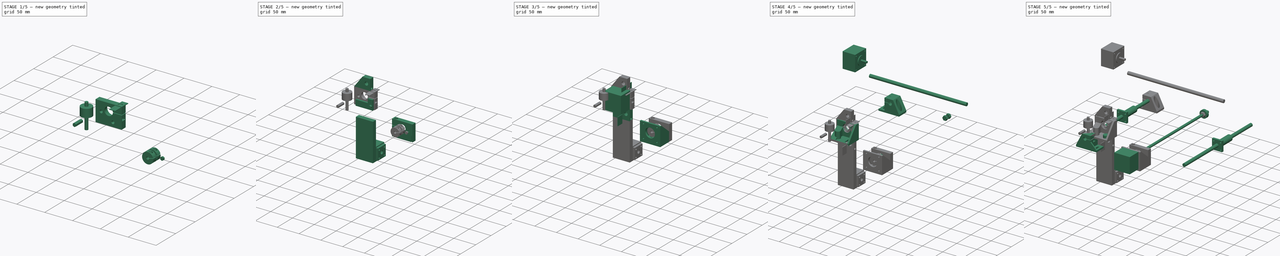
[diagram: build sequence overview — one tinted view per stage of 5, left to right]
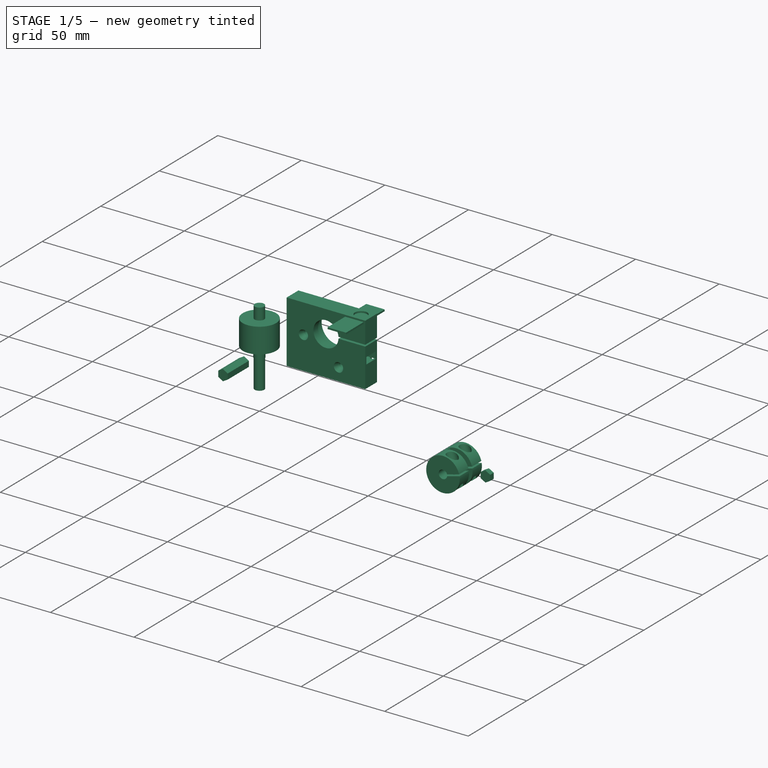
[diagram: stage 1 of 5 — iso view after this stage's code; geometry added in this stage tinted green]
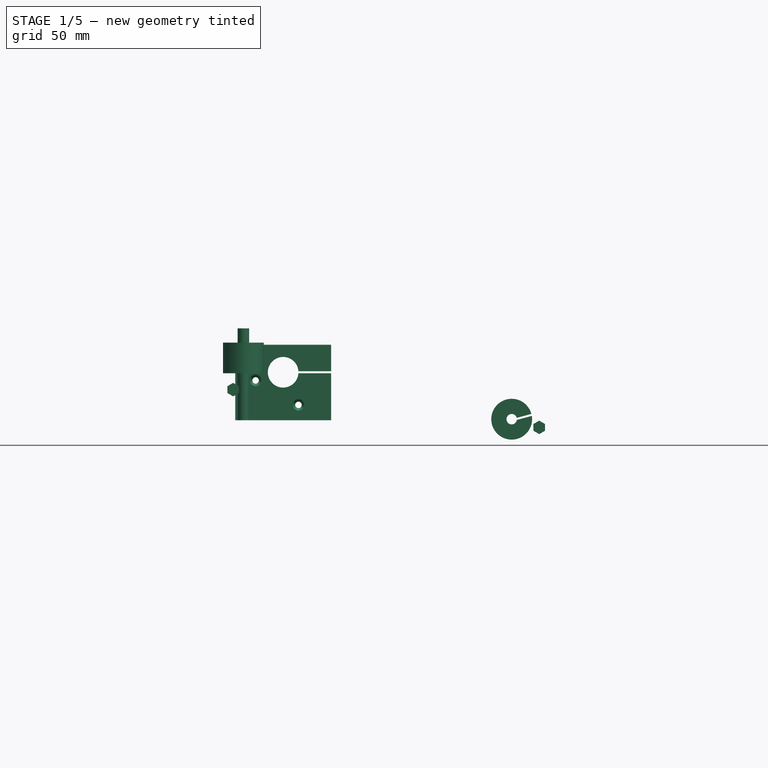
[diagram: stage 1 of 5 — front view after this stage's code; geometry added in this stage tinted green]
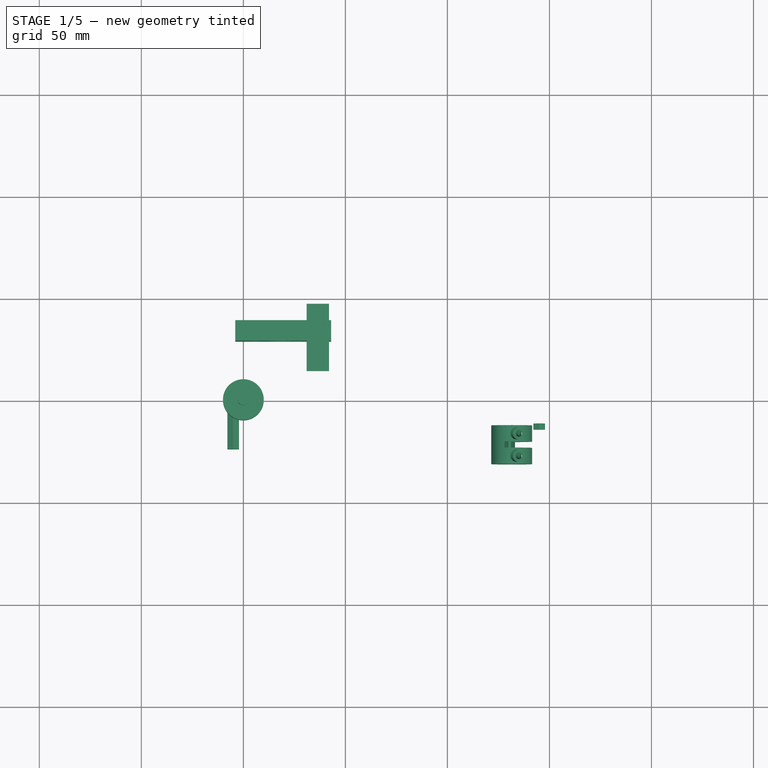
[diagram: stage 1 of 5 — top view after this stage's code; geometry added in this stage tinted green]
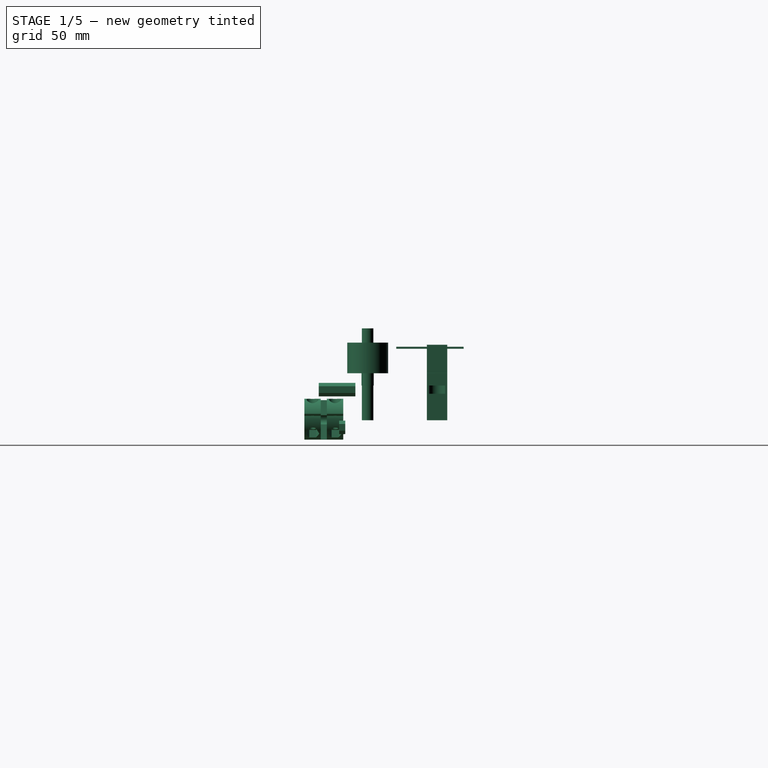
[diagram: stage 1 of 5 — right view after this stage's code; geometry added in this stage tinted green]
FCSTD DOCUMENT  (FreeCAD 0.18R4 (GitTag))
Label: Общий вид
License: All rights reserved
LicenseURL: http://en.wikipedia.org/wiki/All_rights_reserved
objects: Part::Cylinder×91, Part::Cut×87, Part::Box×43, Part::MultiFuse×38, Part::Extrusion×22, Sketcher::SketchObject×20, Part::Cone×14, Part::RegularPolygon×10
note: 325 computed .brp shape members not serialized (recipe doc carries the construction recipe); baked Part::Feature solids carry a one-line shape summary decoded from their .brp

FEATURE [Part::Cylinder] Cylinder099  label="Цилиндр092"
  Angle = 360
  AttacherType = Attacher::AttachEngine3D
  Height = 15
  Radius = 1.6
FEATURE [Part::Cylinder] Cylinder100  label="Цилиндр093"
  Angle = 360
  AttacherType = Attacher::AttachEngine3D
  Height = 15
  Radius = 1.6
FEATURE [Part::Box] Box050  label="Куб050"
  AttacherType = Attacher::AttachEngine3D
  Height = 13
  Length = 2
  Placement = pos=(-1,29,0) rot=(0,0,1;0rad)
  Width = 2
FEATURE [Part::Cone] Cone013  label="Конус013"
  Angle = 360
  AttacherType = Attacher::AttachEngine3D
  Height = 3.5
  Placement = pos=(0,0,15) rot=(0,0,1;0rad)
  Radius1 = 1.6
  Radius2 = 3
FEATURE [Part::Cone] Cone014  label="Конус014"
  Angle = 360
  AttacherType = Attacher::AttachEngine3D
  Height = 3.5
  Placement = pos=(0,0,15) rot=(0,0,1;0rad)
  Radius1 = 1.6
  Radius2 = 3
FEATURE [Part::MultiFuse] Fusion045  label="Винт М3 потай014"
  Placement = pos=(35,21,19.5) rot=(-1,0,0;1.5708rad)
  Shapes = -> [Cone014,Cylinder100]
FEATURE [Part::MultiFuse] Fusion046  label="Винт М3 потай015"
  Placement = pos=(14,21,7.5) rot=(-1,0,0;1.5708rad)
  Shapes = -> [Cone013,Cylinder099]
FEATURE [Part::Box] Box051  label="Куб051"
  AttacherType = Attacher::AttachEngine3D
  Height = 13
  Length = 2
  Placement = pos=(42,29,0) rot=(0,0,1;0rad)
  Width = 2
FEATURE [Part::Cylinder] Cylinder101  label="Цилиндр094"
  Angle = 360
  AttacherType = Attacher::AttachEngine3D
  Height = 15
  Radius = 1.6
FEATURE [Part::Box] Box052  label="Куб052"
  AttacherType = Attacher::AttachEngine3D
  Height = 1
  Length = 19
  Placement = pos=(-4,20,23) rot=(0,0,1;0rad)
  Width = 35
FEATURE [Part::Box] Box053  label="Куб053"
  AttacherType = Attacher::AttachEngine3D
  Height = 37
  Length = 47
  Placement = pos=(-2,29,0) rot=(0,0,1;0rad)
  Width = 10
FEATURE [Part::Cylinder] Cylinder102  label="Цилиндр095"
  Angle = 360
  AttacherType = Attacher::AttachEngine3D
  Height = 6
  Placement = pos=(21.5,29,23.5) rot=(-1,0,0;1.5708rad)
  Radius = 9.6
FEATURE [Part::Cut] Cut124
  Base = -> Box053
  Tool = -> Cylinder102
FEATURE [Part::Cut] Cut126
  Base = -> Cut124
  Tool = -> Box052
FEATURE [Part::Cylinder] Cylinder103  label="Цилиндр096"
  Angle = 360
  AttacherType = Attacher::AttachEngine3D
  Height = 10
  Placement = pos=(4,34,32) rot=(0,0,1;0rad)
  Radius = 3.7
FEATURE [Part::Cylinder] Cylinder104  label="Цилиндр097"
  Angle = 360
  AttacherType = Attacher::AttachEngine3D
  Height = 4
  Placement = pos=(9,11,-8) rot=(0,0,1;0rad)
  Radius = 4
FEATURE [Part::Cylinder] Cylinder105  label="Цилиндр098"
  Angle = 360
  AttacherType = Attacher::AttachEngine3D
  Height = 6
  Placement = pos=(21.5,34,23.5) rot=(-1,0,0;1.5708rad)
  Radius = 7.5
FEATURE [Part::Cut] Cut125
  Base = -> Cut126
  Tool = -> Cylinder105
FEATURE [Part::Cut] Cut129
  Base = -> Cut125
  Tool = -> Cylinder103
FEATURE [Part::Box] Box054  label="Куб054"
  AttacherType = Attacher::AttachEngine3D
  Height = 4
  Length = 13
  Placement = pos=(9,7,-8) rot=(0,0,1;0rad)
  Width = 8
FEATURE [Part::MultiFuse] Fusion047
  Placement = pos=(13,45,21) rot=(0,0,1;3.14159rad)
  Shapes = -> [Box054,Cylinder104]
FEATURE [Part::Cone] Cone015  label="Конус015"
  Angle = 360
  AttacherType = Attacher::AttachEngine3D
  Height = 3.5
  Placement = pos=(0,0,15) rot=(0,0,1;0rad)
  Radius1 = 1.6
  Radius2 = 3
FEATURE [Part::MultiFuse] Fusion048  label="Винт М3 потай016"
  Placement = pos=(4,34,13.5) rot=(0,0,1;0rad)
  Shapes = -> [Cone015,Cylinder101]
FEATURE [Part::Cut] Cut128
  Base = -> Cut129
  Tool = -> Fusion048
FEATURE [Part::Cut] Cut131
  Base = -> Cut128
  Tool = -> Fusion047
FEATURE [Part::Cut] Cut122
  Base = -> Cut131
  Tool = -> Fusion046
FEATURE [Part::Cut] Cut130  label="Передняя001"
  Base = -> Cut122
  Tool = -> Fusion045
FEATURE [Part::Cut] Cut123
  Base = -> Cut130
  Tool = -> Box050
FEATURE [Part::Cut] Cut127  label="Передняя опора  ХВ001"
  Base = -> Cut123
  Placement = pos=(41,68,0) rot=(0,0,1;3.14159rad)
  Tool = -> Box051
FEATURE [Part::Box] Box055  label="Куб055"
  AttacherType = Attacher::AttachEngine3D
  Height = 1
  Length = 11
  Placement = pos=(31,14,35) rot=(0,0,1;0rad)
  Width = 33
FEATURE [Part::Cylinder] Cylinder106  label="Цилиндр099"
  Angle = 360
  AttacherType = Attacher::AttachEngine3D
  Height = 11
  Radius = 2.55
FEATURE [Part::Cylinder] Cylinder107  label="Цилиндр100"
  Angle = 360
  AttacherType = Attacher::AttachEngine3D
  Height = 11
  Placement = pos=(0,0,11) rot=(0,0,1;0rad)
  Radius = 2.82
FEATURE [Part::Cylinder] Cylinder108  label="Цилиндр101"
  Angle = 360
  AttacherType = Attacher::AttachEngine3D
  Height = 19
  Radius = 10
FEATURE [Part::Cylinder] Cylinder109  label="Цилиндр102"
  Angle = 360
  AttacherType = Attacher::AttachEngine3D
  Height = 5
  Placement = pos=(-5,10,15) rot=(0.57735,-0.57735,0.57735;2.0944rad)
  Radius = 3
FEATURE [Part::Box] Box057  label="Куб057"
  AttacherType = Attacher::AttachEngine3D
  Height = 9
  Length = 1
  Placement = pos=(-13,4e-15,0) rot=(0,0,-1;1.5708rad)
  Width = 13
FEATURE [Part::RegularPolygon] RegularPolygon006  label="Правильный многоугольник006"
  AttacherType = Attacher::AttachEngine3D
  Circumradius = 3.3
  Polygon = 6
FEATURE [Part::Extrusion] Extrude022
  Base = -> RegularPolygon006
  Dir = (0,0,1)
  DirMode = 0
  FaceMakerClass = Part::FaceMakerBullseye
  LengthFwd = 18
  LengthRev = 0
  Placement = pos=(-5,-6,15) rot=(0.57735,0.57735,-0.57735;2.0944rad)
  Solid = true
  Symmetric = false
FEATURE [Part::RegularPolygon] RegularPolygon007  label="Правильный многоугольник007"
  AttacherType = Attacher::AttachEngine3D
  Circumradius = 3.3
  Polygon = 6
FEATURE [Part::Extrusion] Extrude023
  Base = -> RegularPolygon007
  Dir = (0,0,1)
  DirMode = 0
  FaceMakerClass = Part::FaceMakerBullseye
  LengthFwd = 18
  LengthRev = 0
  Placement = pos=(-5,-6,4) rot=(0.57735,0.57735,-0.57735;2.0944rad)
  Solid = true
  Symmetric = false
FEATURE [Part::Cylinder] Cylinder110  label="Цилиндр103"
  Angle = 360
  AttacherType = Attacher::AttachEngine3D
  Height = 21
  Placement = pos=(-5,-9,4) rot=(0.57735,0.57735,0.57735;4.18879rad)
  Radius = 1.6
FEATURE [Part::Box] Box059  label="Куб059"
  AttacherType = Attacher::AttachEngine3D
  Height = 9
  Length = 1
  Placement = pos=(-3e-15,-1,10) rot=(0,0,1;1.5708rad)
  Width = 13
FEATURE [Part::Box] Box060  label="Куб060"
  AttacherType = Attacher::AttachEngine3D
  Height = 22
  Length = 3
  Placement = pos=(1,-12,11) rot=(0.57735,-0.57735,-0.57735;4.18879rad)
  Width = 14
FEATURE [Part::RegularPolygon] RegularPolygon008  label="Правильный многоугольник008"
  AttacherType = Attacher::AttachEngine3D
  Circumradius = 3.3
  Polygon = 6
FEATURE [Part::Extrusion] Extrude024
  Base = -> RegularPolygon008
  Dir = (0,0,1)
  DirMode = 0
  FaceMakerClass = Part::FaceMakerBullseye
  LengthFwd = 3
  LengthRev = 0
  Placement = pos=(145,-11,-3.5) rot=(0.57735,0.57735,-0.57735;2.0944rad)
  Solid = true
  Symmetric = false
FEATURE [Part::Cut] Cut132
  Base = -> Cylinder108
  Tool = -> Extrude023
FEATURE [Part::Cut] Cut133
  Base = -> Cut132
  Tool = -> Extrude022
FEATURE [Part::Cylinder] Cylinder111  label="Цилиндр104"
  Angle = 360
  AttacherType = Attacher::AttachEngine3D
  Height = 21
  Placement = pos=(-5,12,15) rot=(0.57735,-0.57735,0.57735;2.0944rad)
  Radius = 1.6
FEATURE [Part::Cut] Cut134
  Base = -> Cut133
  Tool = -> Cylinder110
FEATURE [Part::Cut] Cut135
  Base = -> Cut134
  Tool = -> Cylinder111
FEATURE [Part::Cylinder] Cylinder112  label="Цилиндр105"
  Angle = 360
  AttacherType = Attacher::AttachEngine3D
  Height = 5
  Placement = pos=(-5,10,4) rot=(0.57735,-0.57735,0.57735;2.0944rad)
  Radius = 3
FEATURE [Part::Cut] Cut136
  Base = -> Cut135
  Tool = -> Cylinder109
FEATURE [Part::Cut] Cut137
  Base = -> Cut136
  Tool = -> Cylinder112
FEATURE [Part::Cut] Cut138
  Base = -> Cut137
  Tool = -> Box060
FEATURE [Part::Cut] Cut139
  Base = -> Cut138
  Tool = -> Box057
FEATURE [Part::Cut] Cut140
  Base = -> Cut139
  Tool = -> Box059
FEATURE [Part::Cut] Cut141
  Base = -> Cut140
  Tool = -> Cylinder106
FEATURE [Part::Cut] Cut142
  Base = -> Cut141
  Placement = pos=(131.5,-31,0.5) rot=(-0.092692,0.704063,0.704063;2.95674rad)
  Tool = -> Cylinder107
FEATURE [Part::Cylinder] Cylinder115  label="Цилиндр108"
  Angle = 360
  AttacherType = Attacher::AttachEngine3D
  Height = 17
  Radius = 2.82
FEATURE [Part::Cylinder] Cylinder116  label="Цилиндр109"
  Angle = 360
  AttacherType = Attacher::AttachEngine3D
  Height = 6.2
  Placement = pos=(0,0,17) rot=(0,0,1;0rad)
  Radius = 3
FEATURE [Part::Cylinder] Cylinder117  label="Цилиндр110"
  Angle = 360
  AttacherType = Attacher::AttachEngine3D
  Height = 15
  Placement = pos=(0,0,23) rot=(0,0,1;0rad)
  Radius = 10
FEATURE [Part::RegularPolygon] RegularPolygon009  label="Правильный многоугольник009"
  AttacherType = Attacher::AttachEngine3D
  Circumradius = 3.3
  Polygon = 6
FEATURE [Part::Extrusion] Extrude025
  Base = -> RegularPolygon009
  Dir = (0,0,1)
  DirMode = 0
  FaceMakerClass = Part::FaceMakerBullseye
  LengthFwd = 18
  LengthRev = 0
  Placement = pos=(-5,-6,15) rot=(0.57735,0.57735,-0.57735;2.0944rad)
  Solid = true
  Symmetric = false
FEATURE [Part::Cylinder] Cylinder118  label="Цилиндр111"
  Angle = 360
  AttacherType = Attacher::AttachEngine3D
  Height = 17
  Placement = pos=(0,0,28) rot=(0,0,1;0rad)
  Radius = 2.82
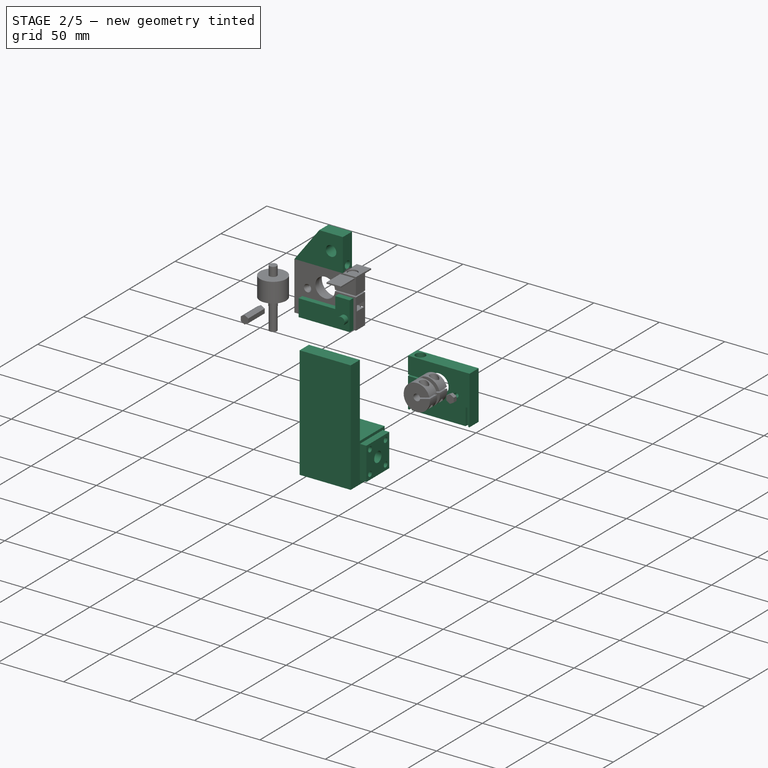
[diagram: stage 2 of 5 — iso view after this stage's code; geometry added in this stage tinted green]
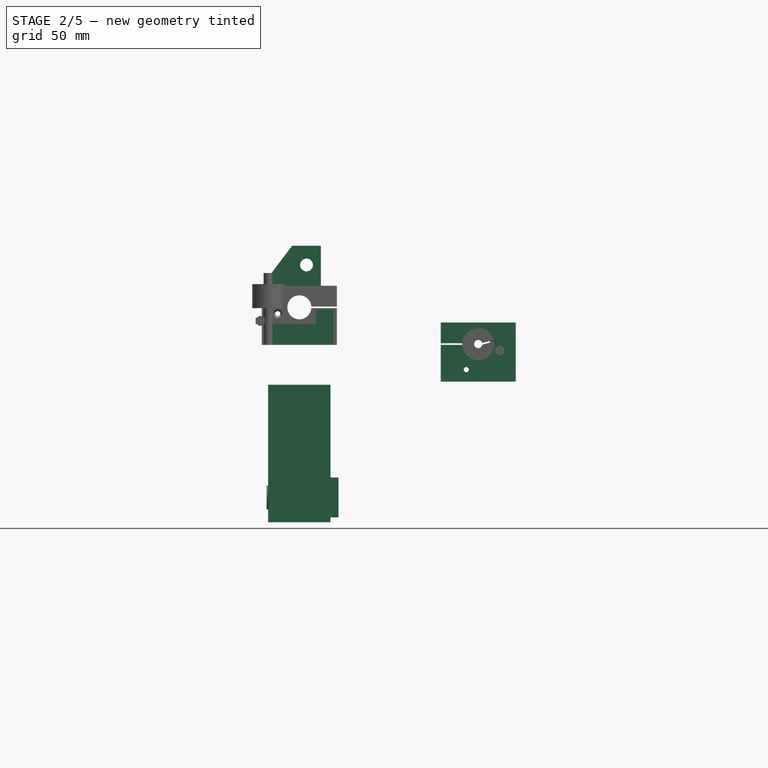
[diagram: stage 2 of 5 — front view after this stage's code; geometry added in this stage tinted green]
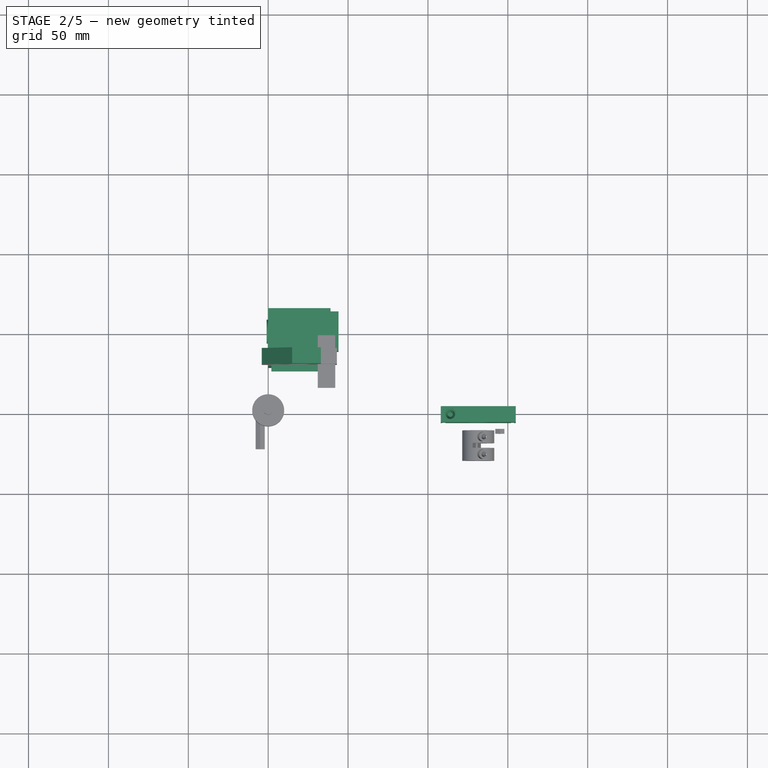
[diagram: stage 2 of 5 — top view after this stage's code; geometry added in this stage tinted green]
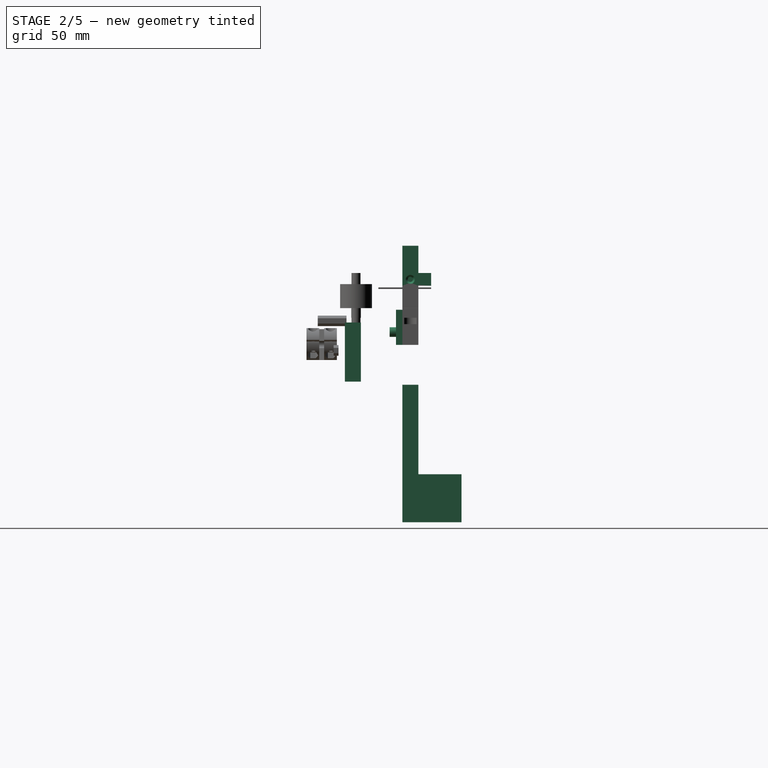
[diagram: stage 2 of 5 — right view after this stage's code; geometry added in this stage tinted green]
FEATURE [Part::Cylinder] Cylinder034  label="Цилиндр031"
  Angle = 360
  AttacherType = Attacher::AttachEngine3D
  Height = 15
  Radius = 1.6
FEATURE [Part::Cone] Cone001  label="Конус001"
  Angle = 360
  AttacherType = Attacher::AttachEngine3D
  Height = 3.5
  Placement = pos=(0,0,15) rot=(0,0,1;0rad)
  Radius1 = 1.6
  Radius2 = 3
FEATURE [Part::Cylinder] Cylinder054  label="Направляющая005"
  Angle = 360
  AttacherType = Attacher::AttachEngine3D
  Height = 240
  Placement = pos=(21,-133,48) rot=(-1,0,0;1.5708rad)
  Radius = 4
FEATURE [Part::Box] Box033  label="Куб033"
  AttacherType = Attacher::AttachEngine3D
  Height = 25
  Length = 18
  Placement = pos=(12,29,35) rot=(0,0,1;0rad)
  Width = 10
FEATURE [Part::RegularPolygon] RegularPolygon004  label="Правильный многоугольник004"
  AttacherType = Attacher::AttachEngine3D
  Circumradius = 3.25
  Polygon = 6
FEATURE [Part::Cone] Cone005  label="Конус005"
  Angle = 360
  AttacherType = Attacher::AttachEngine3D
  Height = 3.5
  Placement = pos=(0,0,15) rot=(0,0,1;0rad)
  Radius1 = 1.6
  Radius2 = 3
FEATURE [Part::Cylinder] Cylinder075  label="Цилиндр069"
  Angle = 360
  AttacherType = Attacher::AttachEngine3D
  Height = 15
  Radius = 1.6
FEATURE [Part::MultiFuse] Fusion030  label="Винт М3 потай005"
  Placement = pos=(30,34,39) rot=(0,-1,0;1.5708rad)
  Shapes = -> [Cone005,Cylinder075]
FEATURE [Part::Cut] Cut074
  Base = -> Box033
  Tool = -> Fusion030
FEATURE [Part::Box] Box036  label="Куб036"
  AttacherType = Attacher::AttachEngine3D
  Height = 13
  Length = 39
  Placement = pos=(2,25,0) rot=(0,0,1;0rad)
  Width = 4
FEATURE [Part::Box] Box037  label="Куб037"
  AttacherType = Attacher::AttachEngine3D
  Height = 9
  Length = 11
  Placement = pos=(30,25,13) rot=(0,0,1;0rad)
  Width = 4
FEATURE [Part::MultiFuse] Fusion036
  Shapes = -> [Box036,Box037]
FEATURE [Part::Cone] Cone009  label="Конус009"
  Angle = 360
  AttacherType = Attacher::AttachEngine3D
  Height = 3.5
  Placement = pos=(0,0,15) rot=(0,0,1;0rad)
  Radius1 = 1.6
  Radius2 = 3
FEATURE [Part::Cylinder] Cylinder080  label="Цилиндр073"
  Angle = 360
  AttacherType = Attacher::AttachEngine3D
  Height = 15
  Radius = 1.6
FEATURE [Part::Cylinder] Cylinder083  label="Цилиндр076"
  Angle = 360
  AttacherType = Attacher::AttachEngine3D
  Height = 10
  Placement = pos=(37,21,8) rot=(-1,0,0;1.5708rad)
  Radius = 3
FEATURE [Part::Cylinder] Cylinder091  label="Цилиндр084"
  Angle = 360
  AttacherType = Attacher::AttachEngine3D
  Height = 60
  Placement = pos=(12.5,12.5,-7) rot=(0,0,1;0rad)
  Radius = 4
FEATURE [Part::Cylinder] Cylinder092  label="Цилиндр085"
  Angle = 360
  AttacherType = Attacher::AttachEngine3D
  Height = 10
  Placement = pos=(4,4,-2) rot=(0,0,1;0rad)
  Radius = 2
FEATURE [Part::Cylinder] Cylinder093  label="Цилиндр086"
  Angle = 360
  AttacherType = Attacher::AttachEngine3D
  Height = 10
  Placement = pos=(4,21,-2) rot=(0,0,1;0rad)
  Radius = 2
FEATURE [Part::Cylinder] Cylinder094  label="Цилиндр087"
  Angle = 360
  AttacherType = Attacher::AttachEngine3D
  Height = 10
  Placement = pos=(21,21,-2) rot=(0,0,1;0rad)
  Radius = 2
FEATURE [Part::Cylinder] Cylinder095  label="Цилиндр088"
  Angle = 360
  AttacherType = Attacher::AttachEngine3D
  Height = 10
  Placement = pos=(21,4,-2) rot=(0,0,1;0rad)
  Radius = 2
FEATURE [Part::Cylinder] Cylinder096  label="Цилиндр089"
  Angle = 360
  AttacherType = Attacher::AttachEngine3D
  Height = 40
  Placement = pos=(12.5,12.5,5) rot=(0,0,1;0rad)
  Radius = 7.5
FEATURE [Part::Box] Box046  label="Куб046"
  AttacherType = Attacher::AttachEngine3D
  Height = 5.2
  Length = 25
  Width = 25
FEATURE [Part::MultiFuse] Fusion042
  Shapes = -> [Box046,Cylinder096]
FEATURE [Part::Cut] Cut106
  Base = -> Fusion042
  Tool = -> Cylinder091
FEATURE [Part::Cut] Cut102
  Base = -> Cut106
  Tool = -> Cylinder092
FEATURE [Part::Cut] Cut103
  Base = -> Cut102
  Tool = -> Cylinder093
FEATURE [Part::Cut] Cut104
  Base = -> Cut103
  Tool = -> Cylinder095
FEATURE [Part::Cut] Cut105  label="Линейный подшипник002"
  Base = -> Cut104
  Placement = pos=(44,39,-83) rot=(0.57735,0.57735,-0.57735;4.18879rad)
  Tool = -> Cylinder094
FEATURE [Part::Box] Box047  label="Куб047"
  AttacherType = Attacher::AttachEngine3D
  Height = 86
  Length = 39
  Placement = pos=(0,29,-111) rot=(0,0,1;0rad)
  Width = 10
FEATURE [Part::Box] Box048  label="Куб048"
  AttacherType = Attacher::AttachEngine3D
  Height = 30
  Length = 39
  Placement = pos=(0,39,-111) rot=(0,0,1;0rad)
  Width = 27
FEATURE [Part::Box] Box049  label="Куб049"
  AttacherType = Attacher::AttachEngine3D
  Height = 4
  Length = 13
  Placement = pos=(9,7,-8) rot=(0,0,1;0rad)
  Width = 8
FEATURE [Part::Cylinder] Cylinder097  label="Цилиндр090"
  Angle = 360
  AttacherType = Attacher::AttachEngine3D
  Height = 4
  Placement = pos=(9,11,-8) rot=(0,0,1;0rad)
  Radius = 4
FEATURE [Part::MultiFuse] Fusion043
  Placement = pos=(27,25,30) rot=(0.57735,0.57735,0.57735;2.0944rad)
  Shapes = -> [Box049,Cylinder097]
FEATURE [Part::Cut] Cut107
  Base = -> Cut074
  Placement = pos=(45,68,2) rot=(0,0,1;3.14159rad)
  Tool = -> Cylinder054
FEATURE [Sketcher::SketchObject] Sketch019
  Placement = pos=(0,0,0) rot=(1,0,0;1.5708rad)
  sketch-geometry (3):
    g0: LineSegment StartX=15 StartY=37 StartZ=0 EndX=-4 EndY=37 EndZ=0
    g1: LineSegment StartX=15 StartY=37 StartZ=0 EndX=15 EndY=62 EndZ=0
    g2: LineSegment StartX=-4 StartY=37 StartZ=0 EndX=15 EndY=62 EndZ=0
  constraints (9):
    c: Horizontal(g0)
    c: DistanceX(g0) = -4
    c: DistanceY(g0) = 37
    c: DistanceX(g0,g0) = 19
    c: Coincident(g1,g0)
    c: Vertical(g1)
    c: DistanceY(g1,g1) = 25
    c: Coincident(g2,g1)
    c: Coincident(g2,g0)
FEATURE [Part::Extrusion] Extrude021
  Base = -> Sketch019
  Dir = (0,1,0)
  DirMode = 0
  FaceMakerClass = Part::FaceMakerBullseye
  LengthFwd = 10
  LengthRev = 0
  Placement = pos=(0,29,0) rot=(0,0,1;0rad)
  Solid = true
  Symmetric = false
FEATURE [Part::Cylinder] Cylinder035  label="Цилиндр032"
  Angle = 360
  AttacherType = Attacher::AttachEngine3D
  Height = 4
  Placement = pos=(9,11,-8) rot=(0,0,1;0rad)
  Radius = 4
FEATURE [Part::Box] Box011  label="Куб011"
  AttacherType = Attacher::AttachEngine3D
  Height = 4
  Length = 13
  Placement = pos=(9,7,-8) rot=(0,0,1;0rad)
  Width = 8
FEATURE [Part::Cylinder] Cylinder036  label="Цилиндр033"
  Angle = 360
  AttacherType = Attacher::AttachEngine3D
  Height = 10
  Placement = pos=(4,34,32) rot=(0,0,1;0rad)
  Radius = 3.7
FEATURE [Part::MultiFuse] Fusion012  label="Винт М3 потай001"
  Placement = pos=(4,34,13.5) rot=(0,0,1;0rad)
  Shapes = -> [Cone001,Cylinder034]
FEATURE [Part::MultiFuse] Fusion013
  Placement = pos=(13,45,21) rot=(0,0,1;3.14159rad)
  Shapes = -> [Box011,Cylinder035]
FEATURE [Part::Box] Box038  label="Куб038"
  AttacherType = Attacher::AttachEngine3D
  Height = 13
  Length = 2
  Placement = pos=(-1,29,0) rot=(0,0,1;0rad)
  Width = 2
FEATURE [Part::MultiFuse] Fusion037  label="Винт М3 потай009"
  Placement = pos=(14,21,7.5) rot=(-1,0,0;1.5708rad)
  Shapes = -> [Cone009,Cylinder080]
FEATURE [Part::Box] Box039  label="Куб039"
  AttacherType = Attacher::AttachEngine3D
  Height = 13
  Length = 2
  Placement = pos=(42,29,0) rot=(0,0,1;0rad)
  Width = 2
FEATURE [Part::Cylinder] Cylinder033  label="Цилиндр030"
  Angle = 360
  AttacherType = Attacher::AttachEngine3D
  Height = 6
  Placement = pos=(21.5,27,23.5) rot=(-1,0,0;1.5708rad)
  Radius = 7.5
FEATURE [Part::Box] Box010  label="Куб010"
  AttacherType = Attacher::AttachEngine3D
  Height = 1
  Length = 19
  Placement = pos=(-4,20,23) rot=(0,0,1;0rad)
  Width = 35
FEATURE [Part::Cylinder] Cylinder032  label="Цилиндр029"
  Angle = 360
  AttacherType = Attacher::AttachEngine3D
  Height = 6
  Placement = pos=(21.5,33,23.5) rot=(-1,0,0;1.5708rad)
  Radius = 9.55
FEATURE [Part::Box] Box009  label="Куб009"
  AttacherType = Attacher::AttachEngine3D
  Height = 37
  Length = 47
  Placement = pos=(-2,29,0) rot=(0,0,1;0rad)
  Width = 10
FEATURE [Part::Cut] Cut025
  Base = -> Box009
  Tool = -> Cylinder032
FEATURE [Part::Cut] Cut113
  Base = -> Cut025
  Tool = -> Box010
FEATURE [Part::Cut] Cut114
  Base = -> Cut113
  Tool = -> Cylinder033
FEATURE [Part::Cut] Cut115
  Base = -> Cut114
  Tool = -> Cylinder036
FEATURE [Part::Cut] Cut116
  Base = -> Cut115
  Tool = -> Fusion012
FEATURE [Part::Cut] Cut117
  Base = -> Cut116
  Tool = -> Fusion013
FEATURE [Part::Cut] Cut118
  Base = -> Cut117
  Tool = -> Fusion037
FEATURE [Part::Cylinder] Cylinder098  label="Цилиндр091"
  Angle = 360
  AttacherType = Attacher::AttachEngine3D
  Height = 15
  Radius = 1.6
FEATURE [Part::Cone] Cone012  label="Конус012"
  Angle = 360
  AttacherType = Attacher::AttachEngine3D
  Height = 3.5
  Placement = pos=(0,0,15) rot=(0,0,1;0rad)
  Radius1 = 1.6
  Radius2 = 3
FEATURE [Part::MultiFuse] Fusion044  label="Винт М3 потай013"
  Placement = pos=(35,21,19.5) rot=(-1,0,0;1.5708rad)
  Shapes = -> [Cone012,Cylinder098]
FEATURE [Part::Cut] Cut119  label="Передняя"
  Base = -> Cut118
  Tool = -> Fusion044
FEATURE [Part::Cut] Cut120
  Base = -> Cut119
  Tool = -> Box038
FEATURE [Part::Cut] Cut121  label="Передняя опора  ХВ"
  Base = -> Cut120
  Placement = pos=(110,-36,-23) rot=(0,0,1;0rad)
  Tool = -> Box039
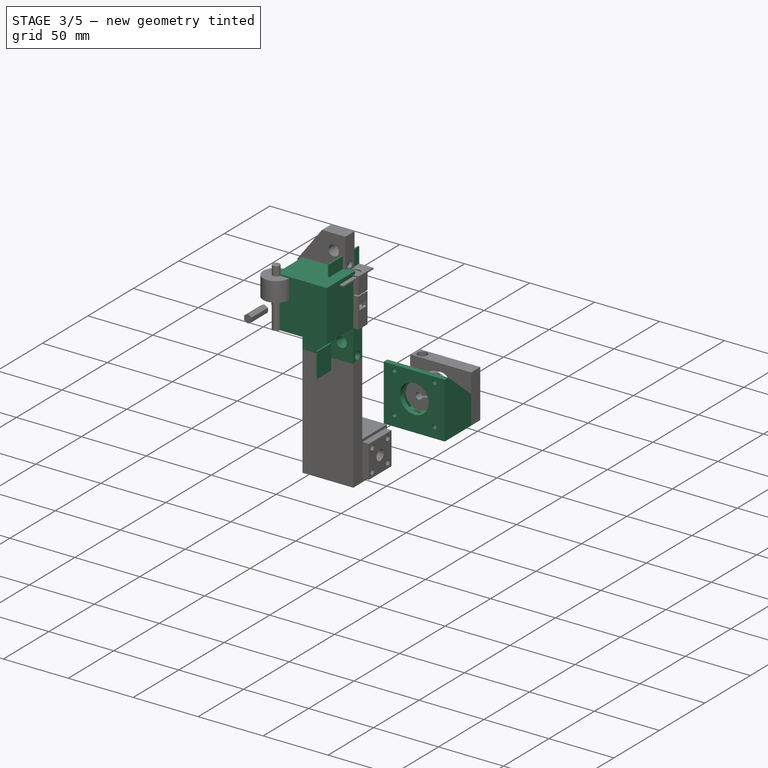
[diagram: stage 3 of 5 — iso view after this stage's code; geometry added in this stage tinted green]
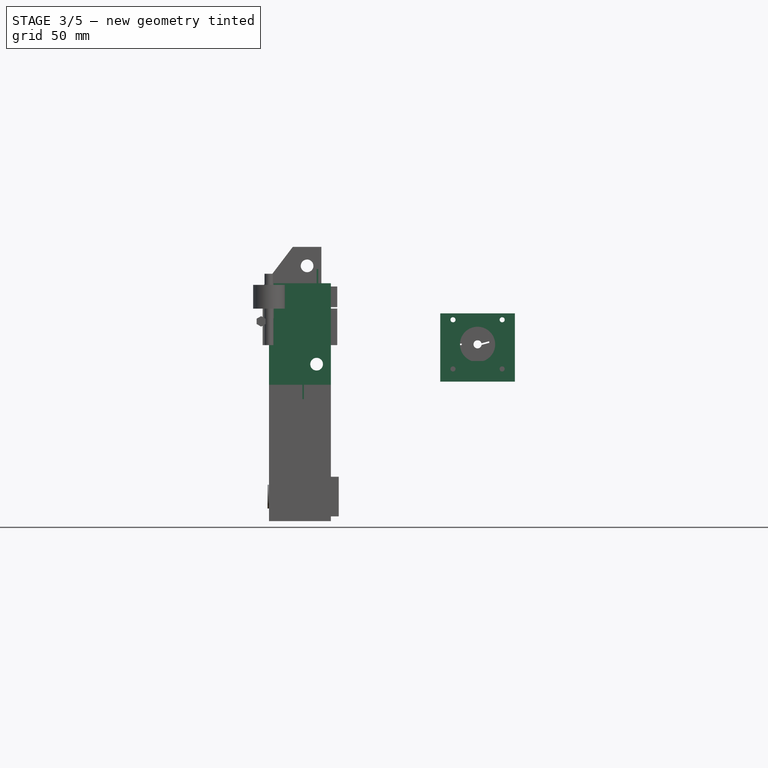
[diagram: stage 3 of 5 — front view after this stage's code; geometry added in this stage tinted green]
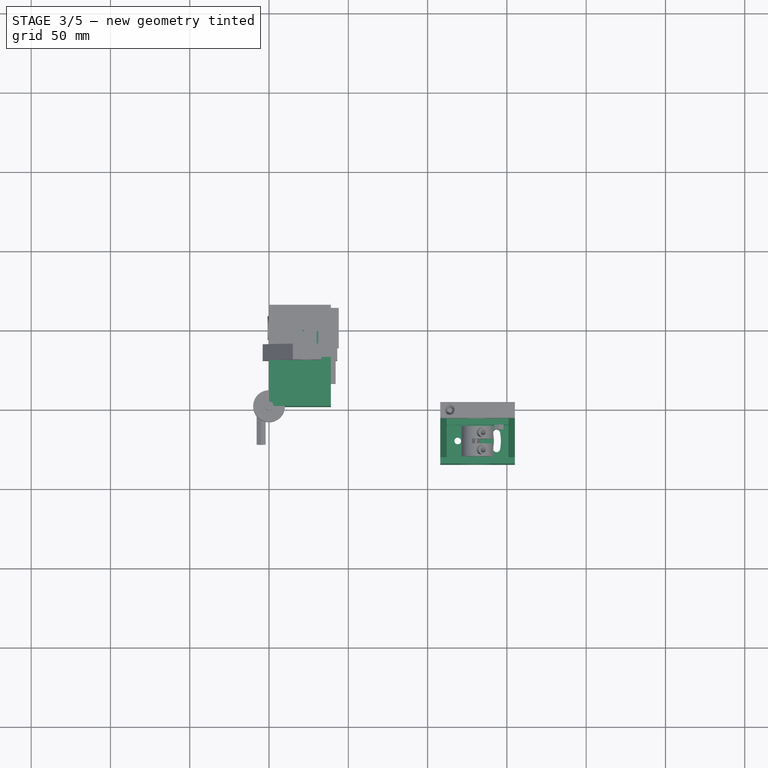
[diagram: stage 3 of 5 — top view after this stage's code; geometry added in this stage tinted green]
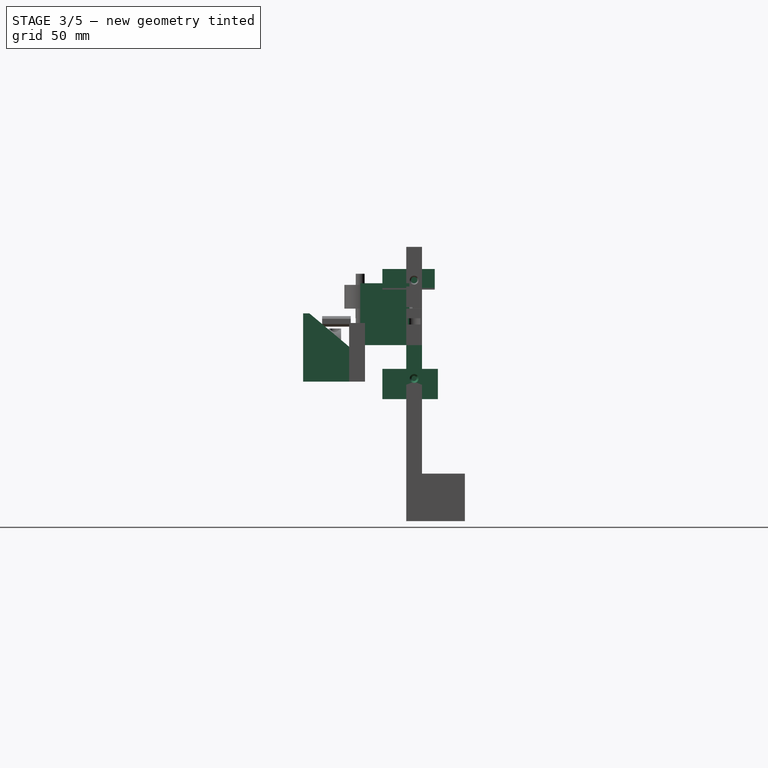
[diagram: stage 3 of 5 — right view after this stage's code; geometry added in this stage tinted green]
FEATURE [Part::Box] Box002  label="Куб002"
  AttacherType = Attacher::AttachEngine3D
  Height = 43
  Length = 44
  Width = 4
FEATURE [Sketcher::SketchObject] Sketch
  Placement = pos=(0,0,0) rot=(0.57735,0.57735,0.57735;2.0944rad)
  sketch-geometry (5):
    g0: LineSegment StartX=0 StartY=0 StartZ=0 EndX=0 EndY=43 EndZ=0
    g1: LineSegment StartX=0 StartY=43 StartZ=0 EndX=4 EndY=43 EndZ=0
    g2: LineSegment StartX=0 StartY=0 StartZ=0 EndX=29 EndY=0 EndZ=0
    g3: LineSegment StartX=29 StartY=0 StartZ=0 EndX=29 EndY=22 EndZ=0
    g4: LineSegment StartX=4 StartY=43 StartZ=0 EndX=29 EndY=22 EndZ=0
  constraints (14):
    c: Coincident(g0,g-1)
    c: Vertical(g0)
    c: DistanceY(g0,g0) = 43
    c: Horizontal(g1)
    c: Coincident(g1,g0)
    c: DistanceX(g1,g1) = 4
    c: Coincident(g2,g0)
    c: Horizontal(g2)
    c: DistanceX(g2,g2) = 29
    c: Coincident(g3,g2)
    c: Vertical(g3)
    c: DistanceY(g3,g3) = 22
    c: Coincident(g4,g3)
    c: Coincident(g1,g4)
FEATURE [Part::Extrusion] Extrude
  Base = -> Sketch
  Dir = (1,0,0)
  DirMode = 0
  FaceMakerClass = Part::FaceMakerBullseye
  LengthFwd = 4
  LengthRev = 0
  Placement = pos=(-2,0,0) rot=(0,0,1;0rad)
  Solid = true
  Symmetric = false
FEATURE [Part::Extrusion] Extrude001
  Base = -> Sketch
  Dir = (1,0,0)
  DirMode = 0
  FaceMakerClass = Part::FaceMakerBullseye
  LengthFwd = 4
  LengthRev = 0
  Placement = pos=(41,0,0) rot=(0,0,1;0rad)
  Solid = true
  Symmetric = false
FEATURE [Part::Box] Box003  label="Куб003"
  AttacherType = Attacher::AttachEngine3D
  Height = 4
  Length = 47
  Placement = pos=(-2,0,0) rot=(0,0,1;0rad)
  Width = 25
FEATURE [Part::Cylinder] Cylinder015  label="Цилиндр013"
  Angle = 360
  AttacherType = Attacher::AttachEngine3D
  Height = 10
  Placement = pos=(37,-3,8) rot=(-1,0,0;1.5708rad)
  Radius = 1.6
FEATURE [Part::Cylinder] Cylinder016  label="Цилиндр014"
  Angle = 360
  AttacherType = Attacher::AttachEngine3D
  Height = 10
  Placement = pos=(6,-3,8) rot=(-1,0,0;1.5708rad)
  Radius = 1.6
FEATURE [Part::Cylinder] Cylinder017  label="Цилиндр015"
  Angle = 360
  AttacherType = Attacher::AttachEngine3D
  Height = 10
  Placement = pos=(6,-3,39) rot=(-1,0,0;1.5708rad)
  Radius = 1.6
FEATURE [Part::Cylinder] Cylinder018  label="Цилиндр016"
  Angle = 360
  AttacherType = Attacher::AttachEngine3D
  Height = 10
  Placement = pos=(37,-3,39) rot=(-1,0,0;1.5708rad)
  Radius = 1.6
FEATURE [Part::Cut] Cut010
  Base = -> Box002
  Tool = -> Cylinder018
FEATURE [Part::Cut] Cut011
  Base = -> Cut010
  Tool = -> Cylinder017
FEATURE [Part::Cut] Cut012
  Base = -> Cut011
  Tool = -> Cylinder016
FEATURE [Part::Cut] Cut013
  Base = -> Cut012
  Tool = -> Cylinder015
FEATURE [Part::Cylinder] Cylinder019  label="Цилиндр017"
  Angle = 360
  AttacherType = Attacher::AttachEngine3D
  Height = 10
  Placement = pos=(21.5,-2,23.5) rot=(-1,0,0;1.5708rad)
  Radius = 11.1
FEATURE [Part::Cut] Cut014
  Base = -> Cut013
  Tool = -> Cylinder019
FEATURE [Part::Cylinder] Cylinder020  label="Цилиндр018"
  Angle = 360
  AttacherType = Attacher::AttachEngine3D
  Height = 10
  Radius = 2.1
FEATURE [Part::Cylinder] Cylinder021  label="Цилиндр019"
  Angle = 360
  AttacherType = Attacher::AttachEngine3D
  Height = 6
  Placement = pos=(0,0,10) rot=(0,0,1;0rad)
  Radius = 6
FEATURE [Part::MultiFuse] Fusion004  label="Саморез001"
  Placement = pos=(9,15,-7) rot=(0,0,1;0rad)
  Shapes = -> [Cylinder020,Cylinder021]
FEATURE [Sketcher::SketchObject] Sketch001
  sketch-geometry (4):
    g0: ArcOfCircle CenterX=9 CenterY=15 CenterZ=0 NormalX=0 NormalY=0 NormalZ=1 AngleXU=0 Radius=27.2 StartAngle=6.09831 EndAngle=6.46806
    g1: ArcOfCircle CenterX=9 CenterY=15 CenterZ=0 NormalX=0 NormalY=0 NormalZ=1 AngleXU=0 Radius=22.8 StartAngle=6.06209 EndAngle=6.50428
    g2: ArcOfCircle CenterX=33.4907 CenterY=10.1383 CenterZ=0 NormalX=0 NormalY=0 NormalZ=1 AngleXU=0 Radius=2.25 StartAngle=3.20309 EndAngle=6.22168
    g3: ArcOfCircle CenterX=33.4907 CenterY=19.8617 CenterZ=0 NormalX=0 NormalY=0 NormalZ=1 AngleXU=0 Radius=2.25 StartAngle=0.0615005 EndAngle=3.08009
  constraints (15):
    c: DistanceX(g0) = 9
    c: DistanceY(g0) = 15
    c: Coincident(g1,g0)
    c: Radius(g1) = 22.8
    c: Radius(g0) = 27.2
    c: DistanceY(g-1,g1) = 10
    c: DistanceY(g-1,g0) = 10
    c: DistanceY(g1,g1) = 10
    c: DistanceY(g0,g0) = 10
    c: Coincident(g2,g1)
    c: Coincident(g2,g0)
    c: Radius(g2) = 2.25
    c: Coincident(g3,g1)
    c: Coincident(g0,g3)
    c: Radius(g3) = 2.25
FEATURE [Part::Extrusion] Extrude002
  Base = -> Sketch001
  Dir = (0,0,-1)
  DirMode = 0
  FaceMakerClass = Part::FaceMakerBullseye
  LengthFwd = 10
  LengthRev = 0
  Placement = pos=(0,0,8) rot=(0,0,1;0rad)
  Solid = true
  Symmetric = false
FEATURE [Part::Cut] Cut015
  Base = -> Box003
  Tool = -> Extrude002
FEATURE [Part::Cut] Cut016
  Base = -> Cut015
  Tool = -> Fusion004
FEATURE [Part::MultiFuse] Fusion005  label="Стойка ШД"
  Shapes = -> [Extrude,Cut016,Cut014,Extrude001]
FEATURE [Part::Box] Box026  label="Куб026"
  AttacherType = Attacher::AttachEngine3D
  Height = 39
  Length = 39
  Width = 31
FEATURE [Part::Cylinder] Cylinder055  label="Цилиндр049"
  Angle = 360
  AttacherType = Attacher::AttachEngine3D
  Height = 10
  Placement = pos=(4,23,35) rot=(-1,0,0;1.5708rad)
  Radius = 1.5
FEATURE [Part::Cut] Cut056
  Base = -> Box026
  Tool = -> Cylinder055
FEATURE [Part::Cylinder] Cylinder057  label="Цилиндр051"
  Angle = 360
  AttacherType = Attacher::AttachEngine3D
  Height = 10
  Placement = pos=(4,23,4) rot=(-1,0,0;1.5708rad)
  Radius = 1.5
FEATURE [Part::Cut] Cut055
  Base = -> Cut056
  Tool = -> Cylinder057
FEATURE [Part::Cylinder] Cylinder058  label="Цилиндр052"
  Angle = 360
  AttacherType = Attacher::AttachEngine3D
  Height = 10
  Placement = pos=(35,23,4) rot=(-1,0,0;1.5708rad)
  Radius = 1.5
FEATURE [Part::Cylinder] Cylinder059  label="Цилиндр053"
  Angle = 360
  AttacherType = Attacher::AttachEngine3D
  Height = 2
  Placement = pos=(19.5,33,19.5) rot=(1,0,0;1.5708rad)
  Radius = 11
FEATURE [Part::Cylinder] Cylinder060  label="Цилиндр054"
  Angle = 360
  AttacherType = Attacher::AttachEngine3D
  Height = 10
  Placement = pos=(35,23,35) rot=(-1,0,0;1.5708rad)
  Radius = 1.5
FEATURE [Part::Cut] Cut057
  Base = -> Cut055
  Tool = -> Cylinder058
FEATURE [Part::Cut] Cut058
  Base = -> Cut057
  Tool = -> Cylinder060
FEATURE [Sketcher::SketchObject] Sketch016
  Placement = pos=(0,0,0) rot=(0.57735,0.57735,0.57735;2.0944rad)
  sketch-geometry (5):
    g0: LineSegment StartX=0 StartY=0 StartZ=0 EndX=0 EndY=43 EndZ=0
    g1: LineSegment StartX=0 StartY=43 StartZ=0 EndX=4 EndY=43 EndZ=0
    g2: LineSegment StartX=0 StartY=0 StartZ=0 EndX=29 EndY=0 EndZ=0
    g3: LineSegment StartX=29 StartY=0 StartZ=0 EndX=29 EndY=22 EndZ=0
    g4: LineSegment StartX=4 StartY=43 StartZ=0 EndX=29 EndY=22 EndZ=0
  constraints (14):
    c: Coincident(g0,g-1)
    c: Vertical(g0)
    c: DistanceY(g0,g0) = 43
    c: Horizontal(g1)
    c: Coincident(g1,g0)
    c: DistanceX(g1,g1) = 4
    c: Coincident(g2,g0)
    c: Horizontal(g2)
    c: DistanceX(g2,g2) = 29
    c: Coincident(g3,g2)
    c: Vertical(g3)
    c: DistanceY(g3,g3) = 22
    c: Coincident(g4,g3)
    c: Coincident(g1,g4)
FEATURE [Sketcher::SketchObject] Sketch017
  sketch-geometry (4):
    g0: ArcOfCircle CenterX=9 CenterY=15 CenterZ=0 NormalX=0 NormalY=0 NormalZ=1 AngleXU=0 Radius=27.2 StartAngle=6.09831 EndAngle=6.46806
    g1: ArcOfCircle CenterX=9 CenterY=15 CenterZ=0 NormalX=0 NormalY=0 NormalZ=1 AngleXU=0 Radius=22.8 StartAngle=6.06209 EndAngle=6.50428
    g2: ArcOfCircle CenterX=33.4907 CenterY=10.1383 CenterZ=0 NormalX=0 NormalY=0 NormalZ=1 AngleXU=0 Radius=2.25 StartAngle=3.20309 EndAngle=6.22168
    g3: ArcOfCircle CenterX=33.4907 CenterY=19.8617 CenterZ=0 NormalX=0 NormalY=0 NormalZ=1 AngleXU=0 Radius=2.25 StartAngle=0.0615005 EndAngle=3.08009
  constraints (15):
    c: DistanceX(g0) = 9
    c: DistanceY(g0) = 15
    c: Coincident(g1,g0)
    c: Radius(g1) = 22.8
    c: Radius(g0) = 27.2
    c: DistanceY(g-1,g1) = 10
    c: DistanceY(g-1,g0) = 10
    c: DistanceY(g1,g1) = 10
    c: DistanceY(g0,g0) = 10
    c: Coincident(g2,g1)
    c: Coincident(g2,g0)
    c: Radius(g2) = 2.25
    c: Coincident(g3,g1)
    c: Coincident(g0,g3)
    c: Radius(g3) = 2.25
FEATURE [Part::Cylinder] Cylinder068  label="Цилиндр062"
  Angle = 360
  AttacherType = Attacher::AttachEngine3D
  Height = 15
  Radius = 1.6
FEATURE [Part::Box] Box030  label="Куб030"
  AttacherType = Attacher::AttachEngine3D
  Height = 1
  Length = 13
  Placement = pos=(31,14,35) rot=(0,-1,0;1.5708rad)
  Width = 33
FEATURE [Part::Cone] Cone004  label="Конус004"
  Angle = 360
  AttacherType = Attacher::AttachEngine3D
  Height = 3.5
  Placement = pos=(0,0,15) rot=(0,0,1;0rad)
  Radius1 = 1.6
  Radius2 = 3
FEATURE [Part::MultiFuse] Fusion029  label="Винт М3 потай004"
  Placement = pos=(4,34,13.5) rot=(0,0,1;0rad)
  Shapes = -> [Cone004,Cylinder068]
FEATURE [Part::Cone] Cone006  label="Конус006"
  Angle = 360
  AttacherType = Attacher::AttachEngine3D
  Height = 3.5
  Placement = pos=(0,0,15) rot=(0,0,1;0rad)
  Radius1 = 1.6
  Radius2 = 3
FEATURE [Part::RegularPolygon] RegularPolygon005  label="Правильный многоугольник005"
  AttacherType = Attacher::AttachEngine3D
  Circumradius = 3.25
  Polygon = 6
FEATURE [Part::Cylinder] Cylinder076  label="Направляющая006"
  Angle = 360
  AttacherType = Attacher::AttachEngine3D
  Height = 240
  Placement = pos=(21,-133,48) rot=(-1,0,0;1.5708rad)
  Radius = 4
FEATURE [Part::Cylinder] Cylinder077  label="Цилиндр070"
  Angle = 360
  AttacherType = Attacher::AttachEngine3D
  Height = 15
  Radius = 1.6
FEATURE [Part::MultiFuse] Fusion032  label="Винт М3 потай006"
  Placement = pos=(30,34,39) rot=(0,-1,0;1.5708rad)
  Shapes = -> [Cone006,Cylinder077]
FEATURE [Part::Extrusion] Extrude020  label="Гайка М3_001"
  Base = -> RegularPolygon005
  Dir = (0,0,1)
  DirMode = 0
  FaceMakerClass = Part::FaceMakerBullseye
  LengthFwd = 3
  LengthRev = 0
  Placement = pos=(30,34,39) rot=(0,-1,0;1.5708rad)
  Solid = true
  Symmetric = false
FEATURE [Part::Box] Box034  label="Куб034"
  AttacherType = Attacher::AttachEngine3D
  Height = 25
  Length = 39
  Placement = pos=(12,29,35) rot=(0,0,1;0rad)
  Width = 10
FEATURE [Part::Cut] Cut083
  Base = -> Box034
  Tool = -> Fusion032
FEATURE [Part::Cut] Cut084
  Base = -> Cut083
  Tool = -> Extrude020
FEATURE [Part::Cut] Cut082
  Base = -> Cut084
  Placement = pos=(51,68,-60) rot=(0,0,1;3.14159rad)
  Tool = -> Cylinder076
FEATURE [Part::Box] Box035  label="Куб035"
  AttacherType = Attacher::AttachEngine3D
  Height = 1
  Length = 19
  Placement = pos=(22,14,-34) rot=(0,-1,0;1.5708rad)
  Width = 35
FEATURE [Sketcher::SketchObject] Sketch018
FEATURE [Part::Cone] Cone007  label="Конус007"
  Angle = 360
  AttacherType = Attacher::AttachEngine3D
  Height = 3.5
  Placement = pos=(0,0,15) rot=(0,0,1;0rad)
  Radius1 = 1.6
  Radius2 = 3
FEATURE [Part::Cylinder] Cylinder078  label="Цилиндр071"
  Angle = 360
  AttacherType = Attacher::AttachEngine3D
  Height = 15
  Radius = 1.6
FEATURE [Part::MultiFuse] Fusion034  label="Винт М3 потай007"
  Placement = pos=(14,21,7.5) rot=(-1,0,0;1.5708rad)
  Shapes = -> [Cone007,Cylinder078]
FEATURE [Part::Cone] Cone008  label="Конус008"
  Angle = 360
  AttacherType = Attacher::AttachEngine3D
  Height = 3.5
  Placement = pos=(0,0,15) rot=(0,0,1;0rad)
  Radius1 = 1.6
  Radius2 = 3
FEATURE [Part::Cylinder] Cylinder079  label="Цилиндр072"
  Angle = 360
  AttacherType = Attacher::AttachEngine3D
  Height = 15
  Radius = 1.6
FEATURE [Part::MultiFuse] Fusion035  label="Винт М3 потай008"
  Placement = pos=(35,21,19.5) rot=(-1,0,0;1.5708rad)
  Shapes = -> [Cone008,Cylinder079]
FEATURE [Part::Box] Box040  label="Куб040"
  AttacherType = Attacher::AttachEngine3D
  Height = 13
  Length = 2
  Placement = pos=(-1,29,0) rot=(0,0,1;0rad)
  Width = 2
FEATURE [Part::Box] Box041  label="Куб041"
  AttacherType = Attacher::AttachEngine3D
  Height = 13
  Length = 2
  Placement = pos=(42,29,0) rot=(0,0,1;0rad)
  Width = 2
FEATURE [Part::Cut] Cut087
  Base = -> Fusion036
  Tool = -> Fusion035
FEATURE [Part::Cut] Cut088
  Base = -> Cut087
  Tool = -> Fusion034
FEATURE [Part::MultiFuse] Fusion039  label="Стойка ШД 2_"
  Shapes = -> [Fusion005,Box040,Cut088,Box041]
FEATURE [Part::Cylinder] Cylinder082  label="Цилиндр075"
  Angle = 360
  AttacherType = Attacher::AttachEngine3D
  Height = 10
  Placement = pos=(6,21,8) rot=(-1,0,0;1.5708rad)
  Radius = 3
FEATURE [Part::Cut] Cut091
  Base = -> Fusion039
  Tool = -> Cylinder083
FEATURE [Part::Cut] Cut092  label="Стойка ШД Съемная"
  Base = -> Cut091
  Placement = pos=(110,-36,-23) rot=(0,0,1;0rad)
  Tool = -> Cylinder082
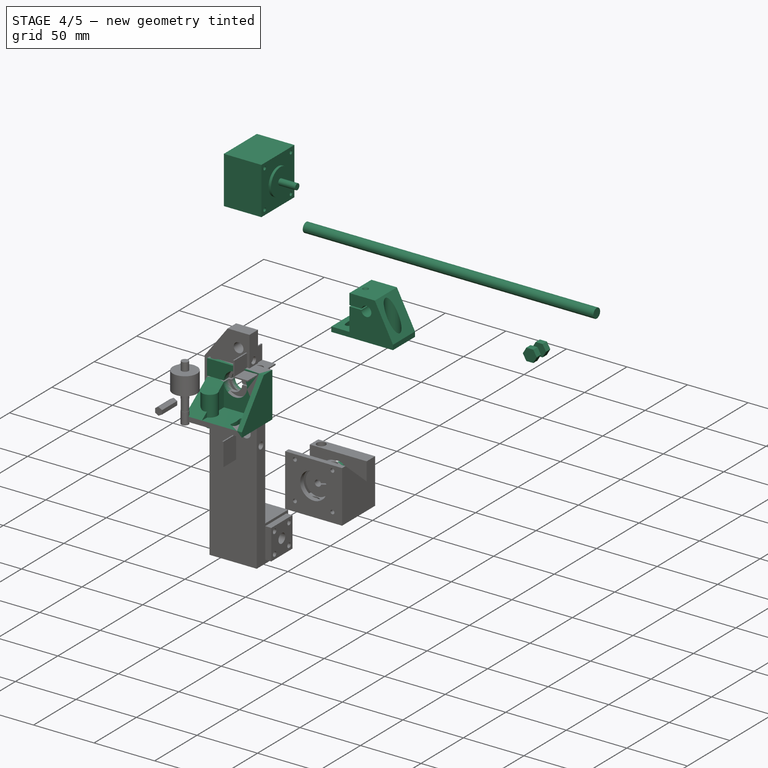
[diagram: stage 4 of 5 — iso view after this stage's code; geometry added in this stage tinted green]
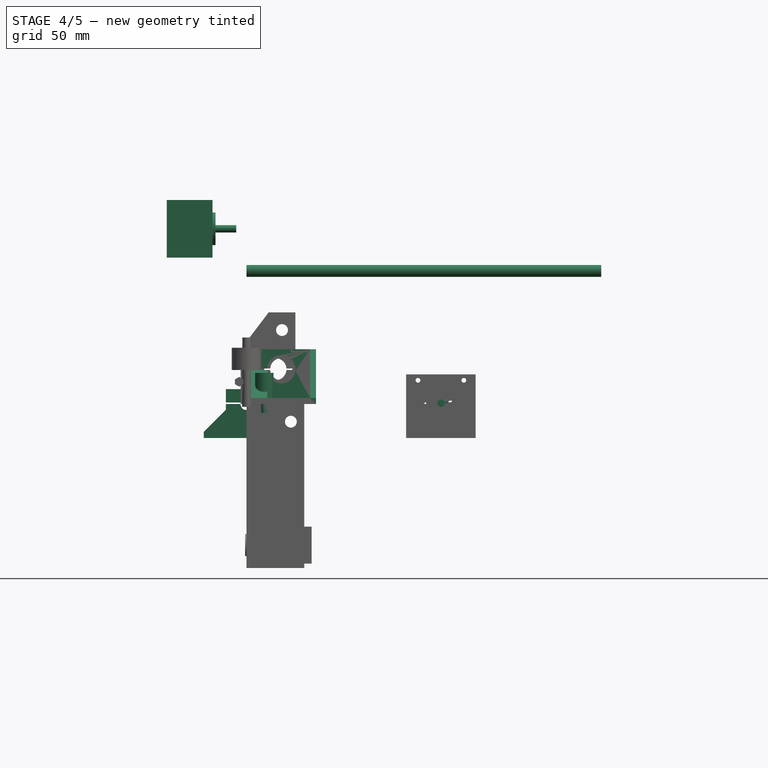
[diagram: stage 4 of 5 — front view after this stage's code; geometry added in this stage tinted green]
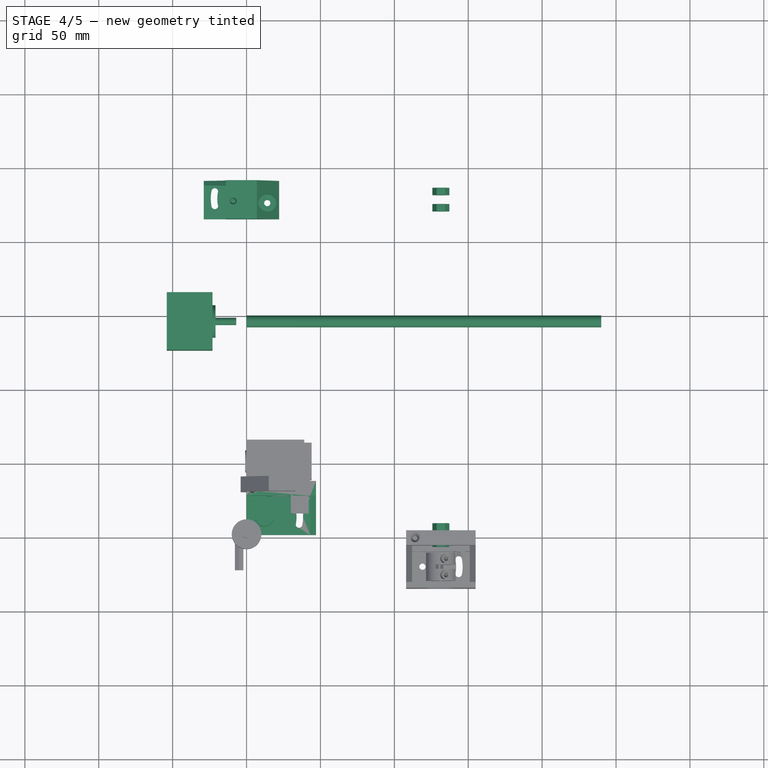
[diagram: stage 4 of 5 — top view after this stage's code; geometry added in this stage tinted green]
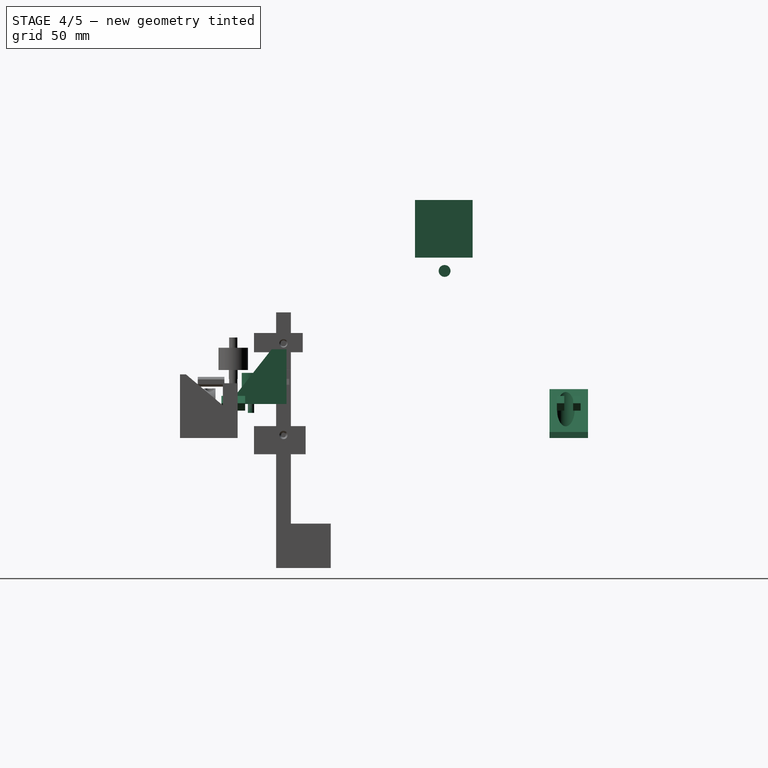
[diagram: stage 4 of 5 — right view after this stage's code; geometry added in this stage tinted green]
FEATURE [Part::Cylinder] Cylinder031  label="Цилиндр028"
  Angle = 360
  AttacherType = Attacher::AttachEngine3D
  Height = 10
  Placement = pos=(0,0,-2) rot=(0,0,1;0rad)
  Radius = 3
FEATURE [Part::RegularPolygon] RegularPolygon  label="Правильный многоугольник"
  AttacherType = Attacher::AttachEngine3D
  Circumradius = 5.75
  Polygon = 6
FEATURE [Part::Extrusion] Extrude006  label="Гайка М6_"
  Base = -> RegularPolygon
  Dir = (0,0,-1)
  DirMode = 0
  FaceMakerClass = Part::FaceMakerBullseye
  LengthFwd = 5
  LengthRev = 0
  Placement = pos=(131.5,-8,0.5) rot=(1,0,0;1.5708rad)
  Solid = true
  Symmetric = false
FEATURE [Part::RegularPolygon] RegularPolygon001  label="Правильный многоугольник001"
  AttacherType = Attacher::AttachEngine3D
  Circumradius = 5.75
  Polygon = 6
FEATURE [Part::Extrusion] Extrude007  label="Гайка М6_001"
  Base = -> RegularPolygon001
  Dir = (0,0,-1)
  DirMode = 0
  FaceMakerClass = Part::FaceMakerBullseye
  LengthFwd = 5
  LengthRev = 0
  Placement = pos=(131.5,3,0.5) rot=(1,0,0;1.5708rad)
  Solid = true
  Symmetric = false
FEATURE [Part::RegularPolygon] RegularPolygon002  label="Правильный многоугольник002"
  AttacherType = Attacher::AttachEngine3D
  Circumradius = 5.75
  Polygon = 6
FEATURE [Part::Extrusion] Extrude008  label="Гайка М6_002"
  Base = -> RegularPolygon002
  Dir = (0,0,-1)
  DirMode = 0
  FaceMakerClass = Part::FaceMakerBullseye
  LengthFwd = 5
  LengthRev = 0
  Placement = pos=(131.5,230,0.5) rot=(1,0,0;1.5708rad)
  Solid = true
  Symmetric = false
FEATURE [Part::RegularPolygon] RegularPolygon003  label="Правильный многоугольник003"
  AttacherType = Attacher::AttachEngine3D
  Circumradius = 5.75
  Polygon = 6
FEATURE [Part::Extrusion] Extrude009  label="Гайка М6_003"
  Base = -> RegularPolygon003
  Dir = (0,0,-1)
  DirMode = 0
  FaceMakerClass = Part::FaceMakerBullseye
  LengthFwd = 5
  LengthRev = 0
  Placement = pos=(131.5,219,0.5) rot=(1,0,0;1.5708rad)
  Solid = true
  Symmetric = false
FEATURE [Part::Cylinder] Cylinder039  label="Цилиндр036"
  Angle = 360
  AttacherType = Attacher::AttachEngine3D
  Height = 15
  Radius = 1.6
FEATURE [Part::Box] Box012  label="Куб012"
  AttacherType = Attacher::AttachEngine3D
  Height = 1
  Length = 26
  Placement = pos=(-4,13,23) rot=(0,0,1;0rad)
  Width = 42
FEATURE [Part::Box] Box013  label="Куб013"
  AttacherType = Attacher::AttachEngine3D
  Height = 37
  Length = 47
  Placement = pos=(0,26,0) rot=(0,0,1;0rad)
  Width = 10
FEATURE [Part::Cylinder] Cylinder042  label="Цилиндр039"
  Angle = 360
  AttacherType = Attacher::AttachEngine3D
  Height = 6
  Placement = pos=(23.5,26,23.5) rot=(-1,0,0;1.5708rad)
  Radius = 9.6
FEATURE [Part::Cylinder] Cylinder043  label="Цилиндр040"
  Angle = 360
  AttacherType = Attacher::AttachEngine3D
  Height = 10
  Placement = pos=(4,31,32) rot=(0,0,1;0rad)
  Radius = 3.7
FEATURE [Part::Cylinder] Cylinder044  label="Цилиндр041"
  Angle = 360
  AttacherType = Attacher::AttachEngine3D
  Height = 4
  Placement = pos=(9,11,-8) rot=(0,0,1;0rad)
  Radius = 4
FEATURE [Part::Cylinder] Cylinder045  label="Цилиндр042"
  Angle = 360
  AttacherType = Attacher::AttachEngine3D
  Height = 6
  Placement = pos=(23.5,30,23.5) rot=(-1,0,0;1.5708rad)
  Radius = 7.5
FEATURE [Part::Box] Box014  label="Куб014"
  AttacherType = Attacher::AttachEngine3D
  Height = 4
  Length = 13
  Placement = pos=(9,7,-8) rot=(0,0,1;0rad)
  Width = 8
FEATURE [Part::MultiFuse] Fusion015
  Placement = pos=(13,42,21) rot=(0,0,1;3.14159rad)
  Shapes = -> [Box014,Cylinder044]
FEATURE [Part::Cone] Cone002  label="Конус002"
  Angle = 360
  AttacherType = Attacher::AttachEngine3D
  Height = 3.5
  Placement = pos=(0,0,15) rot=(0,0,1;0rad)
  Radius1 = 1.6
  Radius2 = 3
FEATURE [Part::MultiFuse] Fusion016  label="Винт М3 потай002"
  Placement = pos=(4,31,13.5) rot=(0,0,1;0rad)
  Shapes = -> [Cone002,Cylinder039]
FEATURE [Part::Cylinder] Cylinder046  label="Цилиндр043"
  Angle = 360
  AttacherType = Attacher::AttachEngine3D
  Height = 15
  Radius = 1.6
FEATURE [Sketcher::SketchObject] Sketch006
  Placement = pos=(0,0,0) rot=(1,0,0;1.5708rad)
  sketch-geometry (3):
    g0: LineSegment StartX=-22 StartY=-19 StartZ=0 EndX=-7 EndY=-19 EndZ=0
    g1: LineSegment StartX=-7 StartY=-19 StartZ=0 EndX=-7 EndY=-4 EndZ=0
    g2: LineSegment StartX=-7 StartY=-4 StartZ=0 EndX=-22 EndY=-19 EndZ=0
  constraints (9):
    c: Horizontal(g0)
    c: Vertical(g1)
    c: DistanceX(g0) = -7
    c: DistanceY(g0) = -19
    c: Coincident(g0,g1)
    c: Coincident(g2,g0)
    c: DistanceY(g1,g1) = 15
    c: Coincident(g2,g1)
    c: DistanceX(g0,g0) = 15
FEATURE [Sketcher::SketchObject] Sketch007
  sketch-geometry (4):
    g0: ArcOfCircle CenterX=9 CenterY=15 CenterZ=0 NormalX=0 NormalY=0 NormalZ=1 AngleXU=0 Radius=27.2 StartAngle=6.09831 EndAngle=6.46806
    g1: ArcOfCircle CenterX=9 CenterY=15 CenterZ=0 NormalX=0 NormalY=0 NormalZ=1 AngleXU=0 Radius=22.8 StartAngle=6.06209 EndAngle=6.50428
    g2: ArcOfCircle CenterX=33.4907 CenterY=10.1383 CenterZ=0 NormalX=0 NormalY=0 NormalZ=1 AngleXU=0 Radius=2.25 StartAngle=3.20309 EndAngle=6.22168
    g3: ArcOfCircle CenterX=33.4907 CenterY=19.8617 CenterZ=0 NormalX=0 NormalY=0 NormalZ=1 AngleXU=0 Radius=2.25 StartAngle=0.0615005 EndAngle=3.08009
  constraints (15):
    c: DistanceX(g0) = 9
    c: DistanceY(g0) = 15
    c: Coincident(g1,g0)
    c: Radius(g1) = 22.8
    c: Radius(g0) = 27.2
    c: DistanceY(g-1,g1) = 10
    c: DistanceY(g-1,g0) = 10
    c: DistanceY(g1,g1) = 10
    c: DistanceY(g0,g0) = 10
    c: Coincident(g2,g1)
    c: Coincident(g2,g0)
    c: Radius(g2) = 2.25
    c: Coincident(g3,g1)
    c: Coincident(g0,g3)
    c: Radius(g3) = 2.25
FEATURE [Sketcher::SketchObject] Sketch008
  Placement = pos=(0,0,0) rot=(1,0,0;1.5708rad)
  sketch-geometry (3):
    g0: LineSegment StartX=-22 StartY=-19 StartZ=0 EndX=-7 EndY=-19 EndZ=0
    g1: LineSegment StartX=-7 StartY=-19 StartZ=0 EndX=-7 EndY=10 EndZ=0
    g2: LineSegment StartX=-7 StartY=10 StartZ=0 EndX=-22 EndY=-19 EndZ=0
  constraints (9):
    c: Horizontal(g0)
    c: Vertical(g1)
    c: DistanceX(g0) = -7
    c: DistanceY(g0) = -19
    c: Coincident(g0,g1)
    c: Coincident(g2,g0)
    c: DistanceY(g1,g1) = 29
    c: Coincident(g2,g1)
    c: DistanceX(g0,g0) = 15
FEATURE [Part::Box] Box015  label="Куб015"
  AttacherType = Attacher::AttachEngine3D
  Height = 4
  Length = 13
  Placement = pos=(9,7,-8) rot=(0,0,1;0rad)
  Width = 8
FEATURE [Part::Box] Box016  label="Куб016"
  AttacherType = Attacher::AttachEngine3D
  Height = 1
  Length = 12
  Placement = pos=(3,-6,0) rot=(0,0,1;0rad)
  Width = 35
FEATURE [Part::Extrusion] Extrude010
  Base = -> Sketch008
  Dir = (0,1,0)
  DirMode = 0
  FaceMakerClass = Part::FaceMakerBullseye
  LengthFwd = 26
  LengthRev = 0
  Placement = pos=(0,-3,0) rot=(0,0,1;0rad)
  Solid = true
  Symmetric = false
FEATURE [Part::Extrusion] Extrude011
  Base = -> Sketch007
  Dir = (0,0,-1)
  DirMode = 0
  FaceMakerClass = Part::FaceMakerBullseye
  LengthFwd = 10
  LengthRev = 0
  Placement = pos=(-12,-3,-17) rot=(0,0,1;0rad)
  Solid = true
  Symmetric = false
FEATURE [Part::Extrusion] Extrude012
  Base = -> Sketch006
  Dir = (0,1,0)
  DirMode = 0
  FaceMakerClass = Part::FaceMakerBullseye
  LengthFwd = 3
  LengthRev = 0
  Placement = pos=(7,4e-15,0) rot=(0,0,1;3.14159rad)
  Solid = true
  Symmetric = false
FEATURE [Part::Cylinder] Cylinder047  label="Цилиндр044"
  Angle = 360
  AttacherType = Attacher::AttachEngine3D
  Height = 30
  Placement = pos=(0,0,10) rot=(0,0,1;0rad)
  Radius = 6
FEATURE [Part::Cylinder] Cylinder048  label="Направляющая003"
  Angle = 360
  AttacherType = Attacher::AttachEngine3D
  Height = 240
  Placement = pos=(0,-7,-2e-15) rot=(-1,0,0;1.5708rad)
  Radius = 4.1
FEATURE [Part::Cylinder] Cylinder049  label="Цилиндр045"
  Angle = 360
  AttacherType = Attacher::AttachEngine3D
  Height = 10
  Radius = 2.1
FEATURE [Part::MultiFuse] Fusion019  label="Саморез003"
  Placement = pos=(-14,12,-29) rot=(0,0,1;0rad)
  Shapes = -> [Cylinder049,Cylinder047]
FEATURE [Part::Box] Box017  label="Куб017"
  AttacherType = Attacher::AttachEngine3D
  Height = 33
  Length = 21
  Placement = pos=(-7,-3,-23) rot=(0,0,1;0rad)
  Width = 26
FEATURE [Part::Cut] Cut045
  Base = -> Box017
  Tool = -> Box016
FEATURE [Part::Cut] Cut041
  Base = -> Cut045
  Tool = -> Cylinder048
FEATURE [Part::Box] Box018  label="Куб018"
  AttacherType = Attacher::AttachEngine3D
  Height = 4
  Length = 51
  Placement = pos=(-22,0,-23) rot=(0,0,1;0rad)
  Width = 26
FEATURE [Part::Cut] Cut044
  Base = -> Box018
  Placement = pos=(0,-3,0) rot=(0,0,1;0rad)
  Tool = -> Extrude011
FEATURE [Part::MultiFuse] Fusion020
  Shapes = -> [Cut041,Cut044,Extrude010]
FEATURE [Part::MultiFuse] Fusion017
  Shapes = -> [Fusion020,Extrude012]
FEATURE [Part::Cylinder] Cylinder050  label="Цилиндр046"
  Angle = 360
  AttacherType = Attacher::AttachEngine3D
  Height = 4
  Placement = pos=(9,11,-8) rot=(0,0,1;0rad)
  Radius = 4
FEATURE [Part::MultiFuse] Fusion018
  Shapes = -> [Box015,Cylinder050]
FEATURE [Part::Cut] Cut043
  Base = -> Fusion017
  Tool = -> Fusion018
FEATURE [Part::Cone] Cone003  label="Конус003"
  Angle = 360
  AttacherType = Attacher::AttachEngine3D
  Height = 2.5
  Placement = pos=(0,0,15) rot=(0,0,1;0rad)
  Radius1 = 1.6
  Radius2 = 2.5
FEATURE [Part::MultiFuse] Fusion021  label="Винт М3 потай003"
  Placement = pos=(9,11,-7) rot=(0,0,1;0rad)
  Shapes = -> [Cone003,Cylinder046]
FEATURE [Part::Cut] Cut046
  Base = -> Cut043
  Tool = -> Fusion021
FEATURE [Part::Cut] Cut042  label="Стойка направляющей001"
  Base = -> Cut046
  Placement = pos=(0,237,0) rot=(0,0,1;3.14159rad)
  Tool = -> Fusion019
FEATURE [Sketcher::SketchObject] Sketch009
  sketch-geometry (4):
    g0: ArcOfCircle CenterX=9 CenterY=15 CenterZ=0 NormalX=0 NormalY=0 NormalZ=1 AngleXU=0 Radius=27.2 StartAngle=6.09831 EndAngle=6.46806
    g1: ArcOfCircle CenterX=9 CenterY=15 CenterZ=0 NormalX=0 NormalY=0 NormalZ=1 AngleXU=0 Radius=22.8 StartAngle=6.06209 EndAngle=6.50428
    g2: ArcOfCircle CenterX=33.4907 CenterY=10.1383 CenterZ=0 NormalX=0 NormalY=0 NormalZ=1 AngleXU=0 Radius=2.25 StartAngle=3.20309 EndAngle=6.22168
    g3: ArcOfCircle CenterX=33.4907 CenterY=19.8617 CenterZ=0 NormalX=0 NormalY=0 NormalZ=1 AngleXU=0 Radius=2.25 StartAngle=0.0615005 EndAngle=3.08009
  constraints (15):
    c: DistanceX(g0) = 9
    c: DistanceY(g0) = 15
    c: Coincident(g1,g0)
    c: Radius(g1) = 22.8
    c: Radius(g0) = 27.2
    c: DistanceY(g-1,g1) = 10
    c: DistanceY(g-1,g0) = 10
    c: DistanceY(g1,g1) = 10
    c: DistanceY(g0,g0) = 10
    c: Coincident(g2,g1)
    c: Coincident(g2,g0)
    c: Radius(g2) = 2.25
    c: Coincident(g3,g1)
    c: Coincident(g0,g3)
    c: Radius(g3) = 2.25
FEATURE [Sketcher::SketchObject] Sketch010
  sketch-geometry (4):
    g0: ArcOfCircle CenterX=9 CenterY=15 CenterZ=0 NormalX=0 NormalY=0 NormalZ=1 AngleXU=0 Radius=27.2 StartAngle=6.09831 EndAngle=6.46806
    g1: ArcOfCircle CenterX=9 CenterY=15 CenterZ=0 NormalX=0 NormalY=0 NormalZ=1 AngleXU=0 Radius=22.8 StartAngle=6.06209 EndAngle=6.50428
    g2: ArcOfCircle CenterX=33.4907 CenterY=10.1383 CenterZ=0 NormalX=0 NormalY=0 NormalZ=1 AngleXU=0 Radius=2.25 StartAngle=3.20309 EndAngle=6.22168
    g3: ArcOfCircle CenterX=33.4907 CenterY=19.8617 CenterZ=0 NormalX=0 NormalY=0 NormalZ=1 AngleXU=0 Radius=2.25 StartAngle=0.0615005 EndAngle=3.08009
  constraints (15):
    c: DistanceX(g0) = 9
    c: DistanceY(g0) = 15
    c: Coincident(g1,g0)
    c: Radius(g1) = 22.8
    c: Radius(g0) = 27.2
    c: DistanceY(g-1,g1) = 10
    c: DistanceY(g-1,g0) = 10
    c: DistanceY(g1,g1) = 10
    c: DistanceY(g0,g0) = 10
    c: Coincident(g2,g1)
    c: Coincident(g2,g0)
    c: Radius(g2) = 2.25
    c: Coincident(g3,g1)
    c: Coincident(g0,g3)
    c: Radius(g3) = 2.25
FEATURE [Sketcher::SketchObject] Sketch011
  Placement = pos=(0,0,0) rot=(1,0,0;1.5708rad)
  sketch-geometry (3):
    g0: LineSegment StartX=-22 StartY=-19 StartZ=0 EndX=-7 EndY=-19 EndZ=0
    g1: LineSegment StartX=-7 StartY=-19 StartZ=0 EndX=-7 EndY=10 EndZ=0
    g2: LineSegment StartX=-7 StartY=10 StartZ=0 EndX=-22 EndY=-19 EndZ=0
  constraints (9):
    c: Horizontal(g0)
    c: Vertical(g1)
    c: DistanceX(g0) = -7
    c: DistanceY(g0) = -19
    c: Coincident(g0,g1)
    c: Coincident(g2,g0)
    c: DistanceY(g1,g1) = 29
    c: Coincident(g2,g1)
    c: DistanceX(g0,g0) = 15
FEATURE [Part::Extrusion] Extrude014
  Base = -> Sketch010
  Dir = (0,0,-1)
  DirMode = 0
  FaceMakerClass = Part::FaceMakerBullseye
  LengthFwd = 10
  LengthRev = 0
  Placement = pos=(2,-3,8) rot=(0,0,1;0rad)
  Solid = true
  Symmetric = false
FEATURE [Part::Box] Box021  label="Куб021"
  AttacherType = Attacher::AttachEngine3D
  Height = 4
  Length = 47
  Width = 26
FEATURE [Sketcher::SketchObject] Sketch012
  Placement = pos=(0,0,0) rot=(1,0,0;1.5708rad)
  sketch-geometry (3):
    g0: LineSegment StartX=-22 StartY=-19 StartZ=0 EndX=-7 EndY=-19 EndZ=0
    g1: LineSegment StartX=-7 StartY=-19 StartZ=0 EndX=-7 EndY=-4 EndZ=0
    g2: LineSegment StartX=-7 StartY=-4 StartZ=0 EndX=-22 EndY=-19 EndZ=0
  constraints (9):
    c: Horizontal(g0)
    c: Vertical(g1)
    c: DistanceX(g0) = -7
    c: DistanceY(g0) = -19
    c: Coincident(g0,g1)
    c: Coincident(g2,g0)
    c: DistanceY(g1,g1) = 15
    c: Coincident(g2,g1)
    c: DistanceX(g0,g0) = 15
FEATURE [Sketcher::SketchObject] Sketch013
  Placement = pos=(0,0,0) rot=(1,0,0;1.5708rad)
  sketch-geometry (3):
    g0: LineSegment StartX=-22 StartY=-19 StartZ=0 EndX=-7 EndY=-19 EndZ=0
    g1: LineSegment StartX=-7 StartY=-19 StartZ=0 EndX=-7 EndY=10 EndZ=0
    g2: LineSegment StartX=-7 StartY=10 StartZ=0 EndX=-22 EndY=-19 EndZ=0
  constraints (9):
    c: Horizontal(g0)
    c: Vertical(g1)
    c: DistanceX(g0) = -7
    c: DistanceY(g0) = -19
    c: Coincident(g0,g1)
    c: Coincident(g2,g0)
    c: DistanceY(g1,g1) = 29
    c: Coincident(g2,g1)
    c: DistanceX(g0,g0) = 15
FEATURE [Part::Cut] Cut047
  Base = -> Box013
  Tool = -> Box012
FEATURE [Part::Cut] Cut048
  Base = -> Cut047
  Tool = -> Cylinder042
FEATURE [Part::Cut] Cut049
  Base = -> Cut048
  Tool = -> Cylinder045
FEATURE [Part::Cut] Cut050
  Base = -> Cut049
  Tool = -> Cylinder043
FEATURE [Part::Cut] Cut051
  Base = -> Cut050
  Tool = -> Fusion016
FEATURE [Part::Cut] Cut052  label="Корпус подшипника 626"
  Base = -> Cut051
  Tool = -> Fusion015
FEATURE [Sketcher::SketchObject] Sketch014
  Placement = pos=(0,0,0) rot=(0.57735,0.57735,0.57735;2.0944rad)
  sketch-geometry (3):
    g0: LineSegment StartX=3.6e-15 StartY=4 StartZ=0 EndX=26 EndY=4 EndZ=0
    g1: LineSegment StartX=26 StartY=4 StartZ=0 EndX=26 EndY=37 EndZ=0
    g2: LineSegment StartX=26 StartY=37 StartZ=0 EndX=3.6e-15 EndY=4 EndZ=0
  constraints (9):
    c: Horizontal(g0)
    c: DistanceX(g0) = 0
    c: DistanceY(g0) = 4
    c: DistanceX(g0,g0) = 26
    c: Coincident(g1,g0)
    c: Vertical(g1)
    c: DistanceY(g1,g1) = 33
    c: Coincident(g2,g1)
    c: Coincident(g2,g0)
FEATURE [Part::Extrusion] Extrude015
  Base = -> Sketch014
  Dir = (1,0,0)
  DirMode = 0
  FaceMakerClass = Part::FaceMakerBullseye
  LengthFwd = 4
  LengthRev = 0
  Placement = pos=(43,0,0) rot=(0,0,1;0rad)
  Solid = true
  Symmetric = false
FEATURE [Sketcher::SketchObject] Sketch015
  Placement = pos=(0,0,0) rot=(0.57735,0.57735,0.57735;2.0944rad)
  sketch-geometry (3):
    g0: LineSegment StartX=3.6e-15 StartY=4 StartZ=0 EndX=26 EndY=4 EndZ=0
    g1: LineSegment StartX=26 StartY=4 StartZ=0 EndX=26 EndY=23 EndZ=0
    g2: LineSegment StartX=26 StartY=23 StartZ=0 EndX=3.6e-15 EndY=4 EndZ=0
  constraints (9):
    c: Horizontal(g0)
    c: DistanceX(g0) = 0
    c: DistanceY(g0) = 4
    c: DistanceX(g0,g0) = 26
    c: Coincident(g1,g0)
    c: Vertical(g1)
    c: DistanceY(g1,g1) = 19
    c: Coincident(g2,g1)
    c: Coincident(g2,g0)
FEATURE [Part::Extrusion] Extrude016
  Base = -> Sketch015
  Dir = (1,0,0)
  DirMode = 0
  FaceMakerClass = Part::FaceMakerBullseye
  LengthFwd = 14
  LengthRev = 0
  Solid = true
  Symmetric = false
FEATURE [Part::Cylinder] Cylinder051  label="Цилиндр047"
  Angle = 360
  AttacherType = Attacher::AttachEngine3D
  Height = 10
  Radius = 2.1
FEATURE [Part::Cylinder] Cylinder052  label="Цилиндр048"
  Angle = 360
  AttacherType = Attacher::AttachEngine3D
  Height = 17
  Placement = pos=(0,0,10) rot=(0,0,1;0rad)
  Radius = 6.25
FEATURE [Part::MultiFuse] Fusion022  label="Саморез004"
  Placement = pos=(12,12,-6) rot=(0,0,1;0rad)
  Shapes = -> [Cylinder051,Cylinder052]
FEATURE [Part::MultiFuse] Fusion023
  Shapes = -> [Cut052,Box021]
FEATURE [Part::MultiFuse] Fusion024
  Shapes = -> [Fusion023,Extrude016,Extrude015]
FEATURE [Part::Cut] Cut053
  Base = -> Fusion024
  Tool = -> Extrude014
FEATURE [Part::Cylinder] Cylinder053  label="Направляющая004"
  Angle = 360
  AttacherType = Attacher::AttachEngine3D
  Height = 240
  Placement = pos=(3.2e-14,143,90) rot=(0.57735,-0.57735,0.57735;4.18879rad)
  Radius = 4
FEATURE [Part::Cylinder] Cylinder056  label="Цилиндр050"
  Angle = 360
  AttacherType = Attacher::AttachEngine3D
  Height = 14
  Placement = pos=(19.5,33,19.5) rot=(-1,0,0;1.5708rad)
  Radius = 2.5
FEATURE [Part::MultiFuse] Fusion025  label="Шаговый двигатель001"
  Placement = pos=(-54,162,99) rot=(0,0,-1;1.5708rad)
  Shapes = -> [Cut058,Cylinder059,Cylinder056]
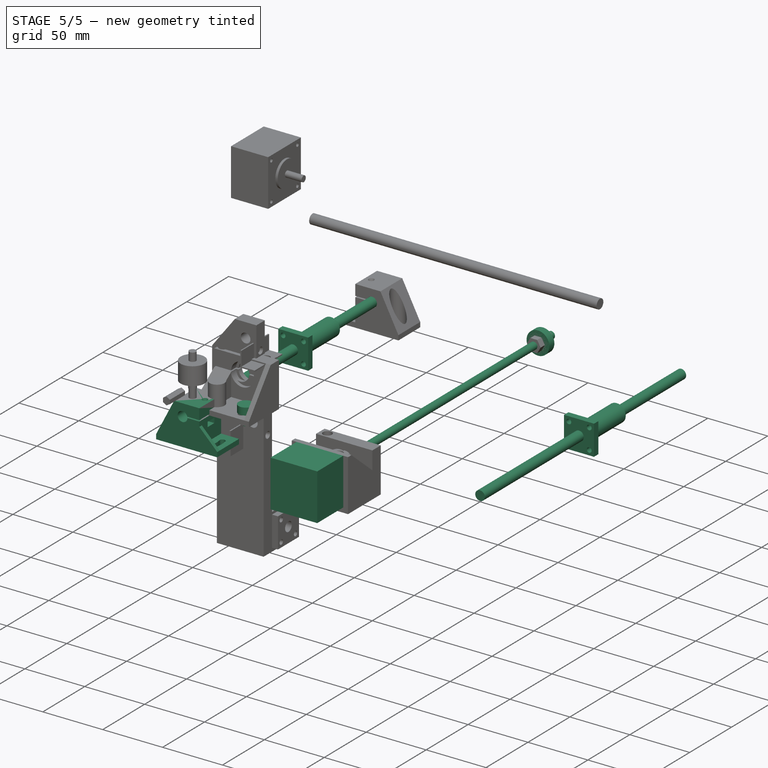
[diagram: stage 5 of 5 — iso view after this stage's code; geometry added in this stage tinted green]
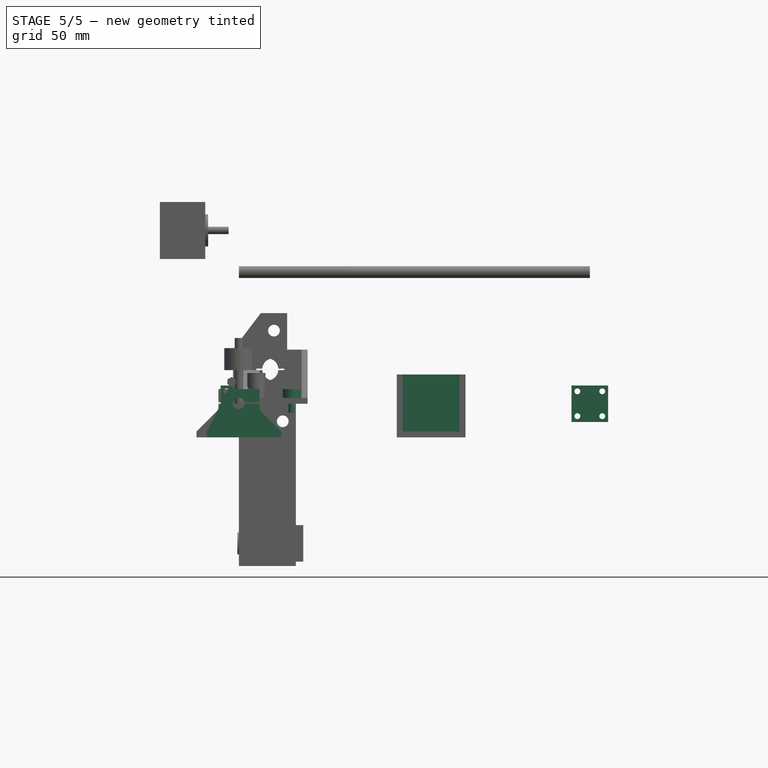
[diagram: stage 5 of 5 — front view after this stage's code; geometry added in this stage tinted green]
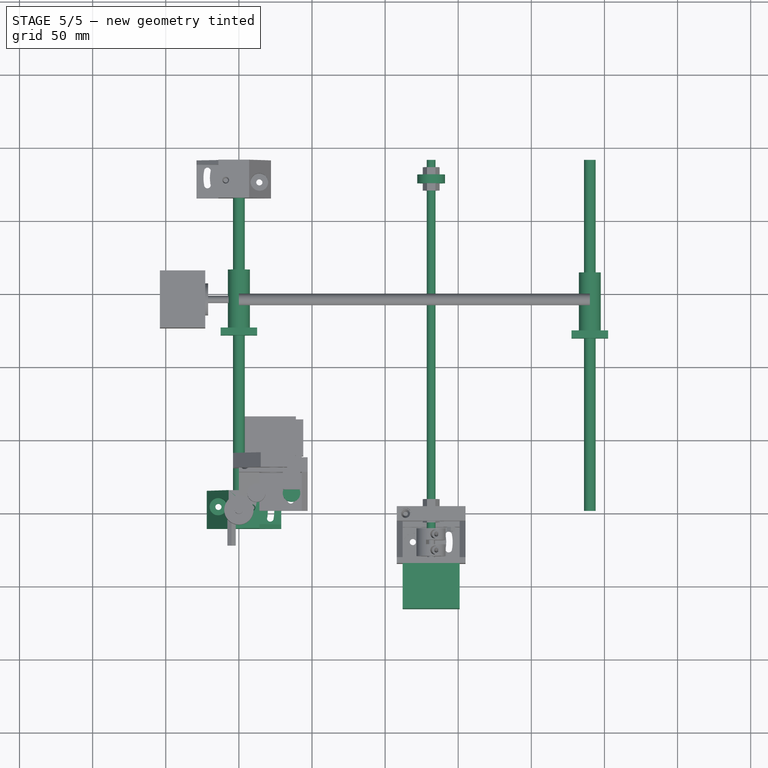
[diagram: stage 5 of 5 — top view after this stage's code; geometry added in this stage tinted green]
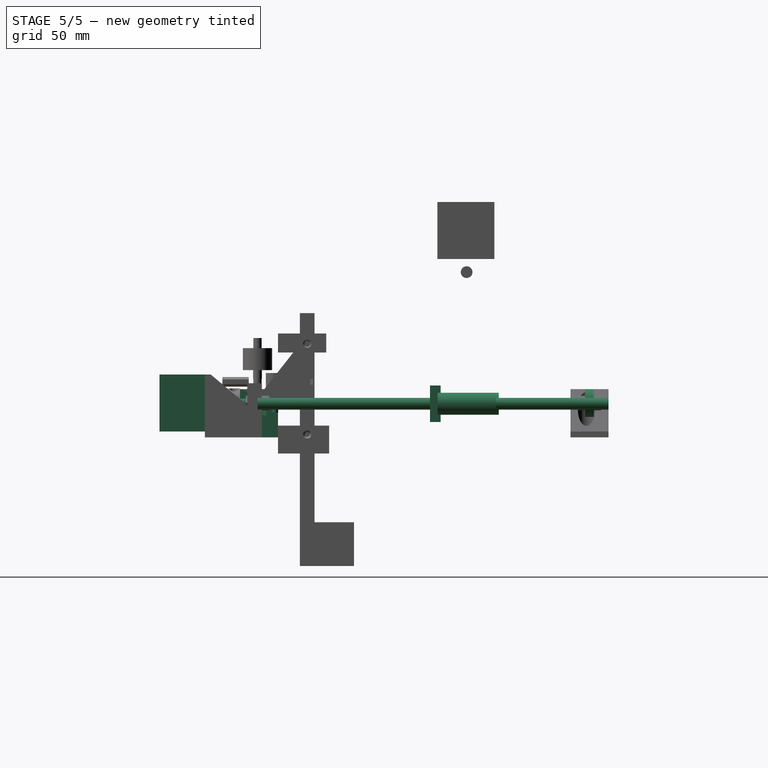
[diagram: stage 5 of 5 — right view after this stage's code; geometry added in this stage tinted green]
FEATURE [Part::Cylinder] Cylinder  label="Направляющая"
  Angle = 360
  AttacherType = Attacher::AttachEngine3D
  Height = 240
  Placement = pos=(0,0,0) rot=(-1,0,0;1.5708rad)
  Radius = 4
FEATURE [Part::Cylinder] Cylinder002  label="Цилиндр002"
  Angle = 360
  AttacherType = Attacher::AttachEngine3D
  Height = 40
  Placement = pos=(12.5,12.5,5) rot=(0,0,1;0rad)
  Radius = 7.5
FEATURE [Part::Box] Box  label="Куб"
  AttacherType = Attacher::AttachEngine3D
  Height = 5.2
  Length = 25
  Width = 25
FEATURE [Part::Cylinder] Cylinder003  label="Цилиндр003"
  Angle = 360
  AttacherType = Attacher::AttachEngine3D
  Height = 60
  Placement = pos=(12.5,12.5,-7) rot=(0,0,1;0rad)
  Radius = 4
FEATURE [Part::Cylinder] Cylinder004  label="Цилиндр004"
  Angle = 360
  AttacherType = Attacher::AttachEngine3D
  Height = 10
  Placement = pos=(4,4,-2) rot=(0,0,1;0rad)
  Radius = 2
FEATURE [Part::Cylinder] Cylinder005  label="Цилиндр005"
  Angle = 360
  AttacherType = Attacher::AttachEngine3D
  Height = 10
  Placement = pos=(4,21,-2) rot=(0,0,1;0rad)
  Radius = 2
FEATURE [Part::Cylinder] Cylinder006  label="Цилиндр006"
  Angle = 360
  AttacherType = Attacher::AttachEngine3D
  Height = 10
  Placement = pos=(21,21,-2) rot=(0,0,1;0rad)
  Radius = 2
FEATURE [Part::Cylinder] Cylinder007  label="Цилиндр007"
  Angle = 360
  AttacherType = Attacher::AttachEngine3D
  Height = 10
  Placement = pos=(21,4,-2) rot=(0,0,1;0rad)
  Radius = 2
FEATURE [Part::MultiFuse] Fusion
  Shapes = -> [Box,Cylinder002]
FEATURE [Part::Cut] Cut
  Base = -> Fusion
  Tool = -> Cylinder003
FEATURE [Part::Cut] Cut001
  Base = -> Cut
  Tool = -> Cylinder004
FEATURE [Part::Cut] Cut002
  Base = -> Cut001
  Tool = -> Cylinder005
FEATURE [Part::Cut] Cut003
  Base = -> Cut002
  Tool = -> Cylinder007
FEATURE [Part::Cut] Cut004  label="Линейный подшипник"
  Base = -> Cut003
  Placement = pos=(-12.5,120,12.5) rot=(-1,0,0;1.5708rad)
  Tool = -> Cylinder006
FEATURE [Part::Cylinder] Cylinder008  label="Направляющая001"
  Angle = 360
  AttacherType = Attacher::AttachEngine3D
  Height = 240
  Placement = pos=(240,0,0) rot=(-1,0,0;1.5708rad)
  Radius = 4
FEATURE [Part::Box] Box001  label="Куб001"
  AttacherType = Attacher::AttachEngine3D
  Height = 39
  Length = 39
  Width = 31
FEATURE [Part::Cylinder] Cylinder009  label="Цилиндр"
  Angle = 360
  AttacherType = Attacher::AttachEngine3D
  Height = 10
  Placement = pos=(4,23,35) rot=(-1,0,0;1.5708rad)
  Radius = 1.5
FEATURE [Part::Cylinder] Cylinder010  label="Цилиндр008"
  Angle = 360
  AttacherType = Attacher::AttachEngine3D
  Height = 10
  Placement = pos=(35,23,35) rot=(-1,0,0;1.5708rad)
  Radius = 1.5
FEATURE [Part::Cylinder] Cylinder011  label="Цилиндр009"
  Angle = 360
  AttacherType = Attacher::AttachEngine3D
  Height = 10
  Placement = pos=(35,23,4) rot=(-1,0,0;1.5708rad)
  Radius = 1.5
FEATURE [Part::Cylinder] Cylinder012  label="Цилиндр010"
  Angle = 360
  AttacherType = Attacher::AttachEngine3D
  Height = 10
  Placement = pos=(4,23,4) rot=(-1,0,0;1.5708rad)
  Radius = 1.5
FEATURE [Part::Cut] Cut005
  Base = -> Box001
  Tool = -> Cylinder009
FEATURE [Part::Cut] Cut006
  Base = -> Cut005
  Tool = -> Cylinder012
FEATURE [Part::Cut] Cut007
  Base = -> Cut006
  Tool = -> Cylinder011
FEATURE [Part::Cut] Cut009  label="Линейный подшипник001"
  Base = -> Cut003
  Placement = pos=(227.5,118,12.5) rot=(-1,0,0;1.5708rad)
  Tool = -> Cylinder006
FEATURE [Part::MultiFuse] Fusion003  label="Саморез"
  Placement = pos=(36,12,-6) rot=(0,0,1;0rad)
  Shapes = -> [Cylinder020,Cylinder021]
FEATURE [Part::Cut] Cut008
  Base = -> Cut007
  Tool = -> Cylinder010
FEATURE [Part::Cylinder] Cylinder014  label="Цилиндр012"
  Angle = 360
  AttacherType = Attacher::AttachEngine3D
  Height = 14
  Placement = pos=(19.5,33,19.5) rot=(-1,0,0;1.5708rad)
  Radius = 2.5
FEATURE [Part::Cylinder] Cylinder013  label="Цилиндр011"
  Angle = 360
  AttacherType = Attacher::AttachEngine3D
  Height = 2
  Placement = pos=(19.5,33,19.5) rot=(1,0,0;1.5708rad)
  Radius = 11
FEATURE [Part::MultiFuse] Fusion001  label="Шаговый двигатель"
  Placement = pos=(112,-67,-19) rot=(0,0,1;0rad)
  Shapes = -> [Cut008,Cylinder013,Cylinder014]
FEATURE [Part::Box] Box004  label="Куб004"
  AttacherType = Attacher::AttachEngine3D
  Height = 33
  Length = 21
  Placement = pos=(-7,-3,-23) rot=(0,0,1;0rad)
  Width = 26
FEATURE [Part::Box] Box005  label="Куб005"
  AttacherType = Attacher::AttachEngine3D
  Height = 4
  Length = 51
  Placement = pos=(-22,0,-23) rot=(0,0,1;0rad)
  Width = 26
FEATURE [Part::Cylinder] Cylinder022  label="Цилиндр020"
  Angle = 360
  AttacherType = Attacher::AttachEngine3D
  Height = 10
  Radius = 2.1
FEATURE [Part::Cylinder] Cylinder023  label="Цилиндр021"
  Angle = 360
  AttacherType = Attacher::AttachEngine3D
  Height = 30
  Placement = pos=(0,0,10) rot=(0,0,1;0rad)
  Radius = 6
FEATURE [Part::MultiFuse] Fusion006  label="Саморез002"
  Placement = pos=(-14,12,-29) rot=(0,0,1;0rad)
  Shapes = -> [Cylinder022,Cylinder023]
FEATURE [Sketcher::SketchObject] Sketch002
  Placement = pos=(0,0,0) rot=(1,0,0;1.5708rad)
  sketch-geometry (3):
    g0: LineSegment StartX=-22 StartY=-19 StartZ=0 EndX=-7 EndY=-19 EndZ=0
    g1: LineSegment StartX=-7 StartY=-19 StartZ=0 EndX=-7 EndY=10 EndZ=0
    g2: LineSegment StartX=-7 StartY=10 StartZ=0 EndX=-22 EndY=-19 EndZ=0
  constraints (9):
    c: Horizontal(g0)
    c: Vertical(g1)
    c: DistanceX(g0) = -7
    c: DistanceY(g0) = -19
    c: Coincident(g0,g1)
    c: Coincident(g2,g0)
    c: DistanceY(g1,g1) = 29
    c: Coincident(g2,g1)
    c: DistanceX(g0,g0) = 15
FEATURE [Part::Extrusion] Extrude003
  Base = -> Sketch002
  Dir = (0,1,0)
  DirMode = 0
  FaceMakerClass = Part::FaceMakerBullseye
  LengthFwd = 26
  LengthRev = 0
  Placement = pos=(0,-3,0) rot=(0,0,1;0rad)
  Solid = true
  Symmetric = false
FEATURE [Sketcher::SketchObject] Sketch003
  sketch-geometry (4):
    g0: ArcOfCircle CenterX=9 CenterY=15 CenterZ=0 NormalX=0 NormalY=0 NormalZ=1 AngleXU=0 Radius=27.2 StartAngle=6.09831 EndAngle=6.46806
    g1: ArcOfCircle CenterX=9 CenterY=15 CenterZ=0 NormalX=0 NormalY=0 NormalZ=1 AngleXU=0 Radius=22.8 StartAngle=6.06209 EndAngle=6.50428
    g2: ArcOfCircle CenterX=33.4907 CenterY=10.1383 CenterZ=0 NormalX=0 NormalY=0 NormalZ=1 AngleXU=0 Radius=2.25 StartAngle=3.20309 EndAngle=6.22168
    g3: ArcOfCircle CenterX=33.4907 CenterY=19.8617 CenterZ=0 NormalX=0 NormalY=0 NormalZ=1 AngleXU=0 Radius=2.25 StartAngle=0.0615005 EndAngle=3.08009
  constraints (15):
    c: DistanceX(g0) = 9
    c: DistanceY(g0) = 15
    c: Coincident(g1,g0)
    c: Radius(g1) = 22.8
    c: Radius(g0) = 27.2
    c: DistanceY(g-1,g1) = 10
    c: DistanceY(g-1,g0) = 10
    c: DistanceY(g1,g1) = 10
    c: DistanceY(g0,g0) = 10
    c: Coincident(g2,g1)
    c: Coincident(g2,g0)
    c: Radius(g2) = 2.25
    c: Coincident(g3,g1)
    c: Coincident(g0,g3)
    c: Radius(g3) = 2.25
FEATURE [Part::Extrusion] Extrude004
  Base = -> Sketch003
  Dir = (0,0,-1)
  DirMode = 0
  FaceMakerClass = Part::FaceMakerBullseye
  LengthFwd = 10
  LengthRev = 0
  Placement = pos=(-12,-3,-17) rot=(0,0,1;0rad)
  Solid = true
  Symmetric = false
FEATURE [Part::Cut] Cut017
  Base = -> Box005
  Placement = pos=(0,-3,0) rot=(0,0,1;0rad)
  Tool = -> Extrude004
FEATURE [Part::Box] Box006  label="Куб006"
  AttacherType = Attacher::AttachEngine3D
  Height = 1
  Length = 12
  Placement = pos=(3,-6,0) rot=(0,0,1;0rad)
  Width = 35
FEATURE [Sketcher::SketchObject] Sketch004
  Placement = pos=(0,0,0) rot=(1,0,0;1.5708rad)
  sketch-geometry (3):
    g0: LineSegment StartX=-22 StartY=-19 StartZ=0 EndX=-7 EndY=-19 EndZ=0
    g1: LineSegment StartX=-7 StartY=-19 StartZ=0 EndX=-7 EndY=-4 EndZ=0
    g2: LineSegment StartX=-7 StartY=-4 StartZ=0 EndX=-22 EndY=-19 EndZ=0
  constraints (9):
    c: Horizontal(g0)
    c: Vertical(g1)
    c: DistanceX(g0) = -7
    c: DistanceY(g0) = -19
    c: Coincident(g0,g1)
    c: Coincident(g2,g0)
    c: DistanceY(g1,g1) = 15
    c: Coincident(g2,g1)
    c: DistanceX(g0,g0) = 15
FEATURE [Part::Extrusion] Extrude005
  Base = -> Sketch004
  Dir = (0,1,0)
  DirMode = 0
  FaceMakerClass = Part::FaceMakerBullseye
  LengthFwd = 3
  LengthRev = 0
  Placement = pos=(7,4e-15,0) rot=(0,0,1;3.14159rad)
  Solid = true
  Symmetric = false
FEATURE [Sketcher::SketchObject] Sketch005
  Placement = pos=(0,0,0) rot=(1,0,0;1.5708rad)
  sketch-geometry (3):
    g0: LineSegment StartX=-22 StartY=-19 StartZ=0 EndX=-7 EndY=-19 EndZ=0
    g1: LineSegment StartX=-7 StartY=-19 StartZ=0 EndX=-7 EndY=-4 EndZ=0
    g2: LineSegment StartX=-7 StartY=-4 StartZ=0 EndX=-22 EndY=-19 EndZ=0
  constraints (9):
    c: Horizontal(g0)
    c: Vertical(g1)
    c: DistanceX(g0) = -7
    c: DistanceY(g0) = -19
    c: Coincident(g0,g1)
    c: Coincident(g2,g0)
    c: DistanceY(g1,g1) = 15
    c: Coincident(g2,g1)
    c: DistanceX(g0,g0) = 15
FEATURE [Part::Cut] Cut018
  Base = -> Box004
  Tool = -> Box006
FEATURE [Part::Cylinder] Cylinder024  label="Направляющая002"
  Angle = 360
  AttacherType = Attacher::AttachEngine3D
  Height = 240
  Placement = pos=(0,-7,-2e-15) rot=(-1,0,0;1.5708rad)
  Radius = 4.1
FEATURE [Part::Cut] Cut019
  Base = -> Cut018
  Tool = -> Cylinder024
FEATURE [Part::MultiFuse] Fusion007
  Shapes = -> [Cut019,Cut017,Extrude003]
FEATURE [Part::Cylinder] Cylinder025  label="Цилиндр022"
  Angle = 360
  AttacherType = Attacher::AttachEngine3D
  Height = 15
  Radius = 1.6
FEATURE [Part::Cone] Cone  label="Конус"
  Angle = 360
  AttacherType = Attacher::AttachEngine3D
  Height = 2.5
  Placement = pos=(0,0,15) rot=(0,0,1;0rad)
  Radius1 = 1.6
  Radius2 = 2.5
FEATURE [Part::MultiFuse] Fusion009  label="Винт М3 потай"
  Placement = pos=(9,11,-7) rot=(0,0,1;0rad)
  Shapes = -> [Cone,Cylinder025]
FEATURE [Part::Cylinder] Cylinder026  label="Цилиндр023"
  Angle = 360
  AttacherType = Attacher::AttachEngine3D
  Height = 4
  Placement = pos=(9,11,-8) rot=(0,0,1;0rad)
  Radius = 4
FEATURE [Part::Box] Box007  label="Куб007"
  AttacherType = Attacher::AttachEngine3D
  Height = 4
  Length = 13
  Placement = pos=(9,7,-8) rot=(0,0,1;0rad)
  Width = 8
FEATURE [Part::MultiFuse] Fusion010
  Shapes = -> [Box007,Cylinder026]
FEATURE [Part::MultiFuse] Fusion011
  Shapes = -> [Fusion007,Extrude005]
FEATURE [Part::Cut] Cut020
  Base = -> Fusion011
  Tool = -> Fusion010
FEATURE [Part::Cut] Cut021
  Base = -> Cut020
  Tool = -> Fusion009
FEATURE [Part::Cut] Cut022  label="Стойка направляющей"
  Base = -> Cut021
  Placement = pos=(0,-9,0) rot=(0,0,1;0rad)
  Tool = -> Fusion006
FEATURE [Part::Cylinder] Cylinder027  label="Цилиндр024"
  Angle = 360
  AttacherType = Attacher::AttachEngine3D
  Height = 6
  Radius = 9.5
FEATURE [Part::Cylinder] Cylinder028  label="Цилиндр025"
  Angle = 360
  AttacherType = Attacher::AttachEngine3D
  Height = 10
  Placement = pos=(0,0,-2) rot=(0,0,1;0rad)
  Radius = 3
FEATURE [Part::Cut] Cut023  label="Подшипник 626"
  Base = -> Cylinder027
  Placement = pos=(131.5,-3,0.5) rot=(-1,0,0;1.5708rad)
  Tool = -> Cylinder028
FEATURE [Part::Cylinder] Cylinder029  label="Цилиндр026"
  Angle = 360
  AttacherType = Attacher::AttachEngine3D
  Height = 260
  Placement = pos=(131.5,-20,0.5) rot=(-1,0,0;1.5708rad)
  Radius = 3
FEATURE [Part::Cylinder] Cylinder030  label="Цилиндр027"
  Angle = 360
  AttacherType = Attacher::AttachEngine3D
  Height = 6
  Radius = 9.5
FEATURE [Part::Cut] Cut024  label="Подшипник 626_001"
  Base = -> Cylinder030
  Placement = pos=(131.5,224,0.5) rot=(-1,0,0;1.5708rad)
  Tool = -> Cylinder031
  expr: Placement.Base.y = 16 + 17
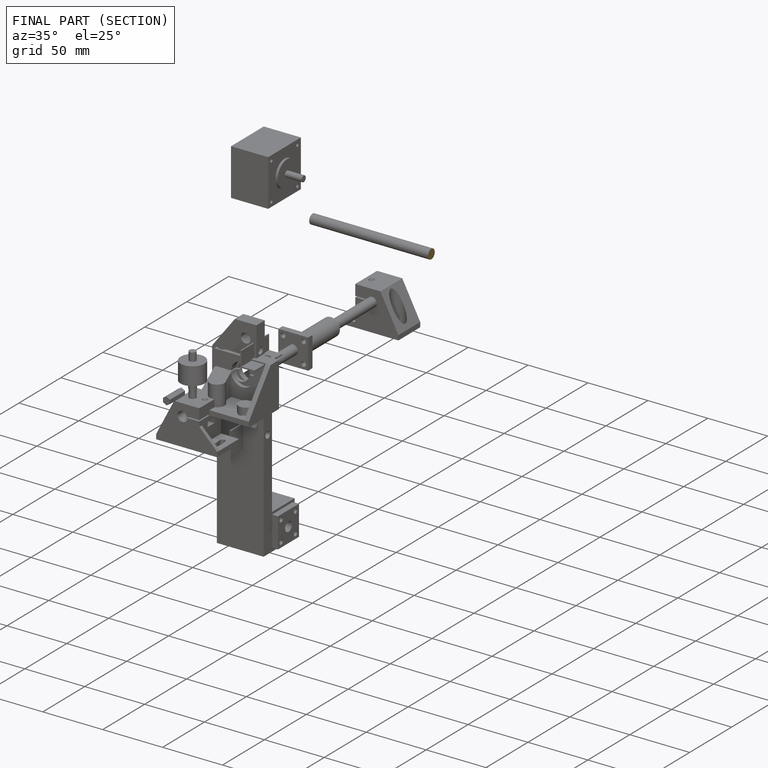
[diagram: finished part — half-section view (interior)]
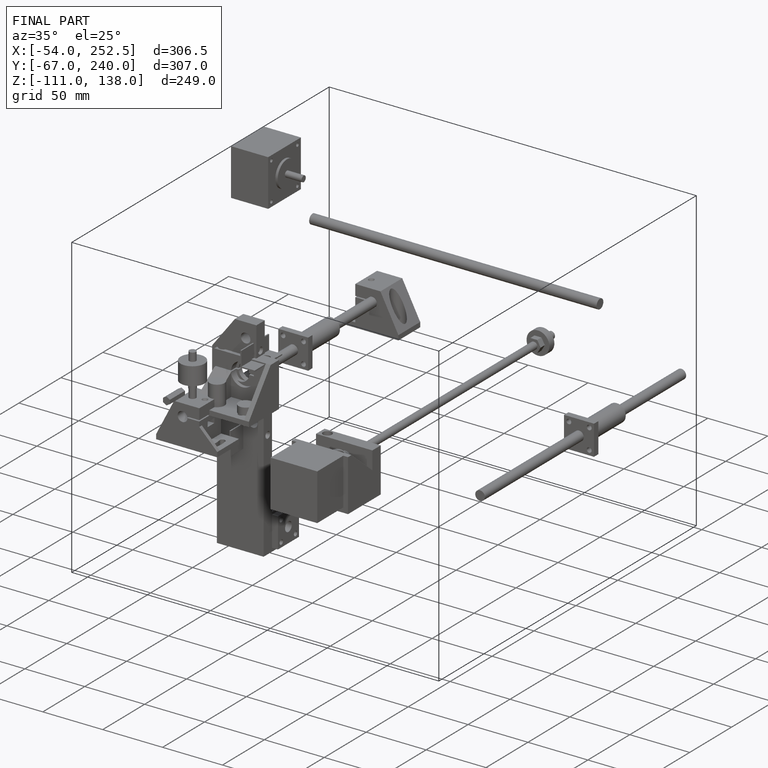
[diagram: finished part — iso view with bounding-box wireframe]
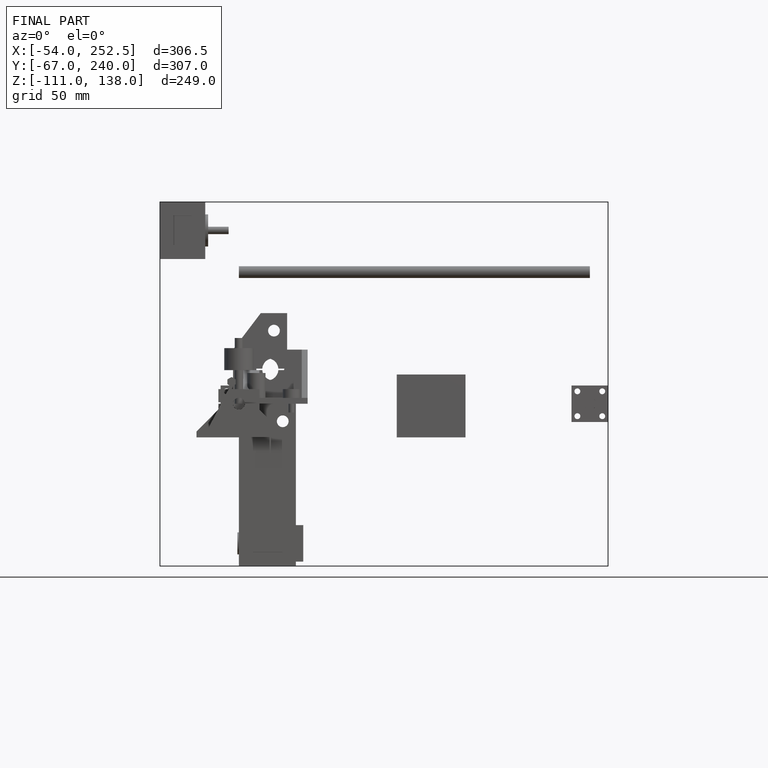
[diagram: finished part — front view with bounding-box wireframe]
